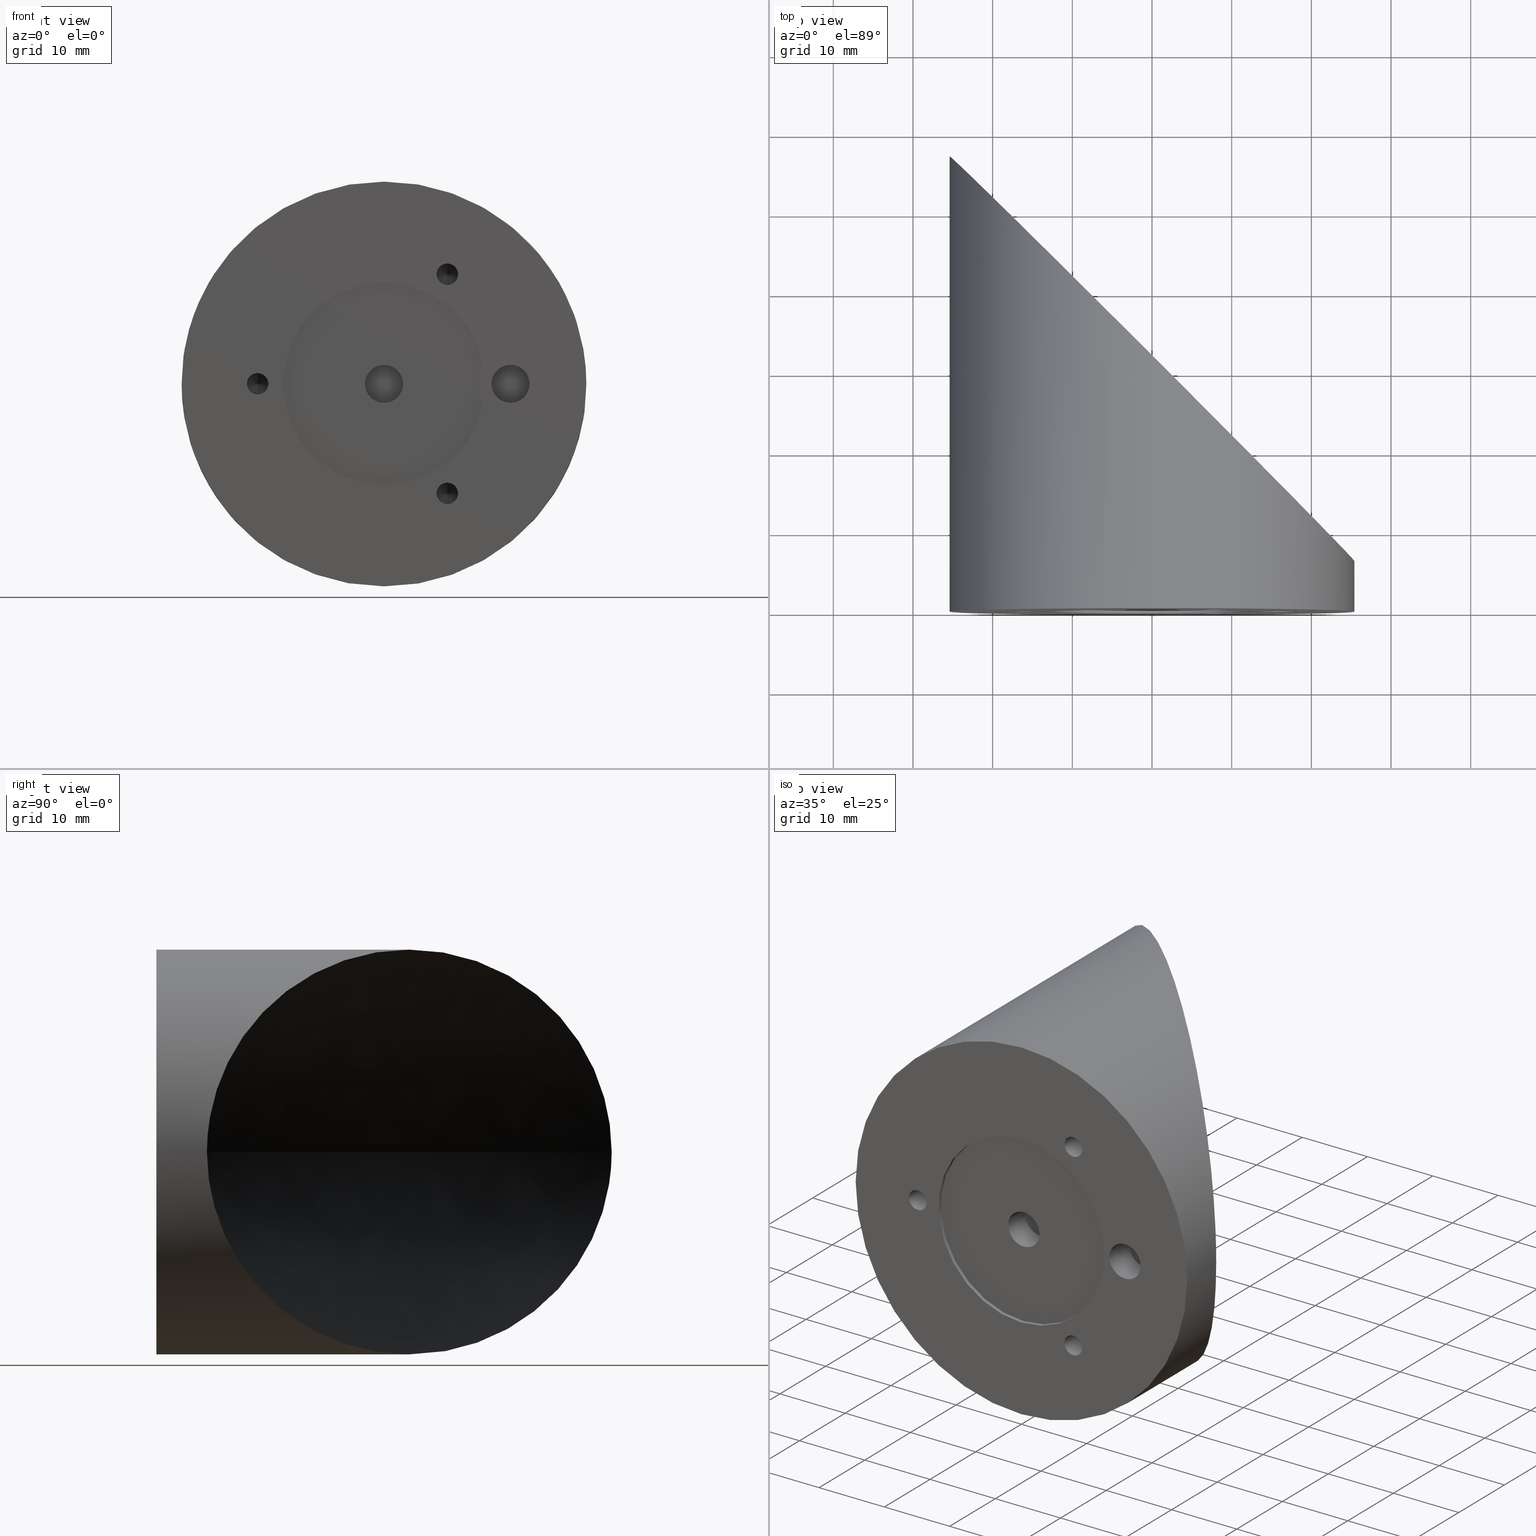
[diagram: canonical four-view strip — front | top / right | iso, engineering-drawing reading convention]
A machine part, canonical four-view strip (front | top / right | iso — engineering-drawing reading convention). The complete STEP part file that produces these views, byte-faithful:
ISO-10303-21;
HEADER;
FILE_DESCRIPTION (( 'STEP AP203' ),
    '1' );
FILE_NAME ('�50_36596.step',
    '2019-04-24T21:00:02',
    ( '' ),
    ( '' ),
    'SwSTEP 2.0',
    'SolidWorks 2018',
    '' );
FILE_SCHEMA (( 'CONFIG_CONTROL_DESIGN' ));
ENDSEC;

DATA;
#1 = CARTESIAN_POINT ( 'NONE',  ( 7.937499999999965361, 5.700000000000000178, -12.39560328507798737 ) ) ;
#2 = AXIS2_PLACEMENT_3D ( 'NONE', #530, #66, #539 ) ;
#3 = DIRECTION ( 'NONE',  ( -0.0000000000000000000, -1.000000000000000000, -0.0000000000000000000 ) ) ;
#4 = ORIENTED_EDGE ( 'NONE', *, *, #450, .T. ) ;
#5 = DIRECTION ( 'NONE',  ( -0.0000000000000000000, -1.000000000000000000, -0.0000000000000000000 ) ) ;
#6 = CARTESIAN_POINT ( 'NONE',  ( -5.677701038054460803, 37.42770103818921257, -24.79850263838227420 ) ) ;
#7 = CARTESIAN_POINT ( 'NONE',  ( 15.87500000000000000, 4.320000000000000284, 0.0000000000000000000 ) ) ;
#8 = MECHANICAL_CONTEXT ( 'NONE', #839, 'mechanical' ) ;
#9 = B_SPLINE_CURVE_WITH_KNOTS ( 'NONE', 3,
 ( #354, #220, #367, #719, #223, #716, #96, #440, #579, #582, #493, #296, #651, #165, #859, #99, #105, #497, #161, #573, #168, #292, #29, #570, #435, #229, #442, #158, #37, #505, #854, #42 ),
 .UNSPECIFIED., .F., .F.,
 ( 4, 2, 2, 2, 2, 2, 2, 2, 2, 2, 2, 2, 2, 2, 2, 4 ),
 ( 0.04810272725894961660, 0.04960341340592316906, 0.05110409955289672151, 0.05410547184684383337, 0.05560615799381738583, 0.05710684414079093829, 0.06010821643473805015, 0.06160890258171160261, 0.06310958872868516201, 0.06611096102263225305, 0.07211370561052643513, 0.07811645019842061721, 0.08411919478631479929, 0.08712056708026189034, 0.09012193937420898138, 0.09612468396210317734 ),
 .UNSPECIFIED. ) ;
#10 = CARTESIAN_POINT ( 'NONE',  ( 3.110602869834276865E-15, 90.23632920900077181, 25.39999999999999858 ) ) ;
#11 = ORIENTED_EDGE ( 'NONE', *, *, #32, .F. ) ;
#12 = CARTESIAN_POINT ( 'NONE',  ( 0.0000000000000000000, 0.0000000000000000000, 0.0000000000000000000 ) ) ;
#13 = ADVANCED_FACE ( 'NONE', ( #313, #826 ), #572, .T. ) ;
#14 = CARTESIAN_POINT ( 'NONE',  ( -25.33990702312139831, 57.08990702325903044, -2.014298265727131998 ) ) ;
#15 = EDGE_CURVE ( 'NONE', #574, #460, #702, .T. ) ;
#16 = EDGE_LOOP ( 'NONE', ( #685, #338, #495, #294 ) ) ;
#17 = PERSON_AND_ORGANIZATION_ROLE ( 'creator' ) ;
#18 = LINE ( 'NONE', #782, #226 ) ;
#19 = CARTESIAN_POINT ( 'NONE',  ( -17.58012703624189754, 49.33012703637960072, -18.35191151905085860 ) ) ;
#20 = EDGE_CURVE ( 'NONE', #62, #403, #58, .T. ) ;
#21 = CARTESIAN_POINT ( 'NONE',  ( -22.92713338263313361, 54.67713338277160773, -10.94182197601608664 ) ) ;
#22 = AXIS2_PLACEMENT_3D ( 'NONE', #538, #414, #766 ) ;
#23 = CARTESIAN_POINT ( 'NONE',  ( -15.87500000000000000, 5.700000000000000178, 0.0000000000000000000 ) ) ;
#24 = ORIENTED_EDGE ( 'NONE', *, *, #835, .F. ) ;
#25 = AXIS2_PLACEMENT_3D ( 'NONE', #725, #667, #297 ) ;
#26 = DATE_AND_TIME ( #197, #762 ) ;
#27 = CC_DESIGN_PERSON_AND_ORGANIZATION_ASSIGNMENT ( #152, #336, ( #796 ) ) ;
#28 = CIRCLE ( 'NONE', #123, 1.352549999999999253 ) ;
#29 = CARTESIAN_POINT ( 'NONE',  ( -13.85126286655956562, 45.60126286669613904, 21.34471803107064858 ) ) ;
#30 = VERTEX_POINT ( 'NONE', #718 ) ;
#31 = DIRECTION ( 'NONE',  ( -0.0000000000000000000, -1.000000000000000000, -0.0000000000000000000 ) ) ;
#32 = EDGE_CURVE ( 'NONE', #849, #148, #316, .T. ) ;
#33 = AXIS2_PLACEMENT_3D ( 'NONE', #267, #72, #415 ) ;
#34 = CARTESIAN_POINT ( 'NONE',  ( 7.937499999999965361, 5.700000000000000178, -13.74815328507798640 ) ) ;
#35 = ORIENTED_EDGE ( 'NONE', *, *, #894, .T. ) ;
#36 = ORIENTED_EDGE ( 'NONE', *, *, #20, .F. ) ;
#37 = CARTESIAN_POINT ( 'NONE',  ( -4.965716845980086447, 36.71571684611458153, 24.92019169298241721 ) ) ;
#38 = CIRCLE ( 'NONE', #536, 12.69999999999999929 ) ;
#39 = CARTESIAN_POINT ( 'NONE',  ( 20.88705431034938798, 10.86294568977931618, -14.45970665876703443 ) ) ;
#40 = CIRCLE ( 'NONE', #883, 2.387499999999999734 ) ;
#41 = EDGE_LOOP ( 'NONE', ( #353, #160, #106 ) ) ;
#42 = CARTESIAN_POINT ( 'NONE',  ( -3.679782173415781046E-12, 31.75000000013650236, 25.39999999999956160 ) ) ;
#43 = DIRECTION ( 'NONE',  ( 0.0000000000000000000, 1.000000000000000000, 0.0000000000000000000 ) ) ;
#44 = CARTESIAN_POINT ( 'NONE',  ( 15.75322996235737527, 15.99677003777224016, 19.94088469936381713 ) ) ;
#45 = EDGE_CURVE ( 'NONE', #529, #218, #180, .T. ) ;
#46 = CARTESIAN_POINT ( 'NONE',  ( 2.867070042870211832, 28.88292995726230927, -25.24789856614434314 ) ) ;
#47 = MANIFOLD_SOLID_BREP ( 'Cut-Extrude1', #713 ) ;
#48 = APPROVAL ( #696, 'UNSPECIFIED' ) ;
#49 = DIRECTION ( 'NONE',  ( 0.0000000000000000000, 1.000000000000000000, 0.0000000000000000000 ) ) ;
#50 = EDGE_CURVE ( 'NONE', #465, #522, #77, .T. ) ;
#51 = EDGE_LOOP ( 'NONE', ( #577, #439 ) ) ;
#52 = FACE_OUTER_BOUND ( 'NONE', #759, .T. ) ;
#53 = COORDINATED_UNIVERSAL_TIME_OFFSET ( 5, 0, .BEHIND. ) ;
#54 = CARTESIAN_POINT ( 'NONE',  ( 3.574495887741338418, 28.17550411239097485, 25.15748655172640724 ) ) ;
#55 = LINE ( 'NONE', #411, #715 ) ;
#56 = CARTESIAN_POINT ( 'NONE',  ( -2.642881778843148241E-15, 0.0000000000000000000, 0.0000000000000000000 ) ) ;
#57 = AXIS2_PLACEMENT_3D ( 'NONE', #436, #183, #585 ) ;
#58 = LINE ( 'NONE', #434, #646 ) ;
#59 = ADVANCED_FACE ( 'NONE', ( #580 ), #215, .F. ) ;
#60 = DIRECTION ( 'NONE',  ( -0.0000000000000000000, -1.000000000000000000, -0.0000000000000000000 ) ) ;
#61 = DIRECTION ( 'NONE',  ( 0.0000000000000000000, -1.000000000000000000, 0.0000000000000000000 ) ) ;
#62 = VERTEX_POINT ( 'NONE', #858 ) ;
#63 = CIRCLE ( 'NONE', #345, 2.387499999999999289 ) ;
#64 = CARTESIAN_POINT ( 'NONE',  ( 7.937499999999965361, 0.0000000000000000000, -13.74815328507798640 ) ) ;
#65 = CARTESIAN_POINT ( 'NONE',  ( 2.923844232964305409E-16, 4.320000000000000284, 2.387499999999999289 ) ) ;
#66 = DIRECTION ( 'NONE',  ( 0.0000000000000000000, 1.000000000000000000, 0.0000000000000000000 ) ) ;
#67 = DIRECTION ( 'NONE',  ( 0.0000000000000000000, 0.0000000000000000000, -1.000000000000000000 ) ) ;
#68 = CARTESIAN_POINT ( 'NONE',  ( 7.937499999999965361, 5.700000000000000178, 13.74815328507798640 ) ) ;
#69 = DIRECTION ( 'NONE',  ( 0.0000000000000000000, 0.0000000000000000000, -1.000000000000000000 ) ) ;
#70 = ORIENTED_EDGE ( 'NONE', *, *, #369, .F. ) ;
#71 = AXIS2_PLACEMENT_3D ( 'NONE', #668, #444, #745 ) ;
#72 = DIRECTION ( 'NONE',  ( -0.0000000000000000000, -1.000000000000000000, -0.0000000000000000000 ) ) ;
#73 = ORIENTED_EDGE ( 'NONE', *, *, #596, .F. ) ;
#74 = ORIENTED_EDGE ( 'NONE', *, *, #289, .F. ) ;
#75 = LOCAL_TIME ( 17, 0, 2.000000000000000000, #235 ) ;
#76 = CARTESIAN_POINT ( 'NONE',  ( -15.87500000000000000, 6.512694030265726575, 0.0000000000000000000 ) ) ;
#77 = CIRCLE ( 'NONE', #358, 12.69999999999999929 ) ;
#78 = DATE_TIME_ROLE ( 'creation_date' ) ;
#79 = CARTESIAN_POINT ( 'NONE',  ( 7.937499999999965361, 0.0000000000000000000, 13.74815328507798640 ) ) ;
#80 = SECURITY_CLASSIFICATION ( '', '', #474 ) ;
#81 = EDGE_LOOP ( 'NONE', ( #628, #175, #556, #221, #204 ) ) ;
#82 = AXIS2_PLACEMENT_3D ( 'NONE', #559, #557, #636 ) ;
#83 = CARTESIAN_POINT ( 'NONE',  ( -24.17242148413162184, 55.92242148427015280, -7.859274957130898187 ) ) ;
#84 = CIRCLE ( 'NONE', #177, 1.352549999999999253 ) ;
#85 =( NAMED_UNIT ( * ) SI_UNIT ( $, .STERADIAN. ) SOLID_ANGLE_UNIT ( ) );
#86 = VECTOR ( 'NONE', #746, 1000.000000000000000 ) ;
#87 = CARTESIAN_POINT ( 'NONE',  ( -25.40000000000032188, 57.15000000013932890, -1.010557820234587956 ) ) ;
#88 = DIRECTION ( 'NONE',  ( -0.0000000000000000000, -1.000000000000000000, -0.0000000000000000000 ) ) ;
#89 = ORIENTED_EDGE ( 'NONE', *, *, #50, .F. ) ;
#90 = EDGE_CURVE ( 'NONE', #460, #661, #248, .T. ) ;
#91 = ORIENTED_EDGE ( 'NONE', *, *, #492, .T. ) ;
#92 = CC_DESIGN_APPROVAL ( #48, ( #80 ) ) ;
#93 = CARTESIAN_POINT ( 'NONE',  ( -23.12656499384053888, 54.87656499397899523, -10.51405073267908463 ) ) ;
#94 = CYLINDRICAL_SURFACE ( 'NONE', #114, 1.352549999999999253 ) ;
#95 = DIRECTION ( 'NONE',  ( 0.0000000000000000000, 0.0000000000000000000, -1.000000000000000000 ) ) ;
#96 = CARTESIAN_POINT ( 'NONE',  ( -24.91912955028560006, 56.66912955042496947, 5.016703429671586001 ) ) ;
#97 = ORIENTED_EDGE ( 'NONE', *, *, #258, .T. ) ;
#98 = ORIENTED_EDGE ( 'NONE', *, *, #264, .F. ) ;
#99 = CARTESIAN_POINT ( 'NONE',  ( -21.83922973555702995, 53.58922973569545434, 12.97751472815525453 ) ) ;
#100 = APPROVAL_DATE_TIME ( #271, #48 ) ;
#101 = CARTESIAN_POINT ( 'NONE',  ( 21.85500477762742122, 9.894995222501284715, -12.97336527762334768 ) ) ;
#102 = ORIENTED_EDGE ( 'NONE', *, *, #781, .T. ) ;
#103 = AXIS2_PLACEMENT_3D ( 'NONE', #728, #49, #237 ) ;
#104 = CARTESIAN_POINT ( 'NONE',  ( 7.937499999999965361, 0.0000000000000000000, 13.74815328507798640 ) ) ;
#105 = CARTESIAN_POINT ( 'NONE',  ( -21.60348923600461291, 53.35348923614303374, 13.36597650318335084 ) ) ;
#106 = ORIENTED_EDGE ( 'NONE', *, *, #506, .T. ) ;
#107 = CARTESIAN_POINT ( 'NONE',  ( 23.67062844458222770, 8.079371555545424854, 9.224653027086247903 ) ) ;
#108 = CARTESIAN_POINT ( 'NONE',  ( 7.107514868007380748, 24.64248513212402614, -24.42891655262618755 ) ) ;
#109 = AXIS2_PLACEMENT_3D ( 'NONE', #273, #88, #349 ) ;
#110 = PERSON_AND_ORGANIZATION ( #672, #430 ) ;
#111 = CARTESIAN_POINT ( 'NONE',  ( -21.38687317528383147, 57.53145720013552733, -32.87462744436670192 ) ) ;
#112 = CARTESIAN_POINT ( 'NONE',  ( 23.49425201712657341, 8.255747983001402446, -9.664520403935878079 ) ) ;
#113 = CARTESIAN_POINT ( 'NONE',  ( -25.70479999999708198, 57.53145720013551312, -11.11543243757011368 ) ) ;
#114 = AXIS2_PLACEMENT_3D ( 'NONE', #104, #228, #861 ) ;
#115 = CARTESIAN_POINT ( 'NONE',  ( 15.87500000000000000, 4.319999999999995843, 0.0000000000000000000 ) ) ;
#116 = CC_DESIGN_PERSON_AND_ORGANIZATION_ASSIGNMENT ( #217, #624, ( #80 ) ) ;
#117 = CARTESIAN_POINT ( 'NONE',  ( 17.59307431041942138, 14.15692568970981036, 18.39065751051364117 ) ) ;
#118 = CARTESIAN_POINT ( 'NONE',  ( -15.87500000000000000, 5.700000000000000178, 0.0000000000000000000 ) ) ;
#119 = ORIENTED_EDGE ( 'NONE', *, *, #264, .T. ) ;
#120 = CARTESIAN_POINT ( 'NONE',  ( 15.12322275978768715, 16.62677724034237770, 20.42218853992491745 ) ) ;
#121 = CIRCLE ( 'NONE', #664, 1.352549999999999253 ) ;
#122 = CARTESIAN_POINT ( 'NONE',  ( 7.937499999999965361, 5.700000000000000178, 13.74815328507798640 ) ) ;
#123 = AXIS2_PLACEMENT_3D ( 'NONE', #723, #788, #856 ) ;
#124 = VERTEX_POINT ( 'NONE', #280 ) ;
#125 = ADVANCED_BREP_SHAPE_REPRESENTATION ( '+50_36596', ( #47, #709 ), #528 ) ;
#126 = DIRECTION ( 'NONE',  ( 0.0000000000000000000, 0.0000000000000000000, -1.000000000000000000 ) ) ;
#127 = DIRECTION ( 'NONE',  ( 0.0000000000000000000, 1.000000000000000000, 0.0000000000000000000 ) ) ;
#128 = CARTESIAN_POINT ( 'NONE',  ( 7.937499999999965361, -4.588139233005562251E-17, 13.74815328507798640 ) ) ;
#129 = CARTESIAN_POINT ( 'NONE',  ( 3.110602869834276865E-15, 0.0000000000000000000, 25.39999999999999858 ) ) ;
#130 = ORIENTED_EDGE ( 'NONE', *, *, #857, .F. ) ;
#131 = PLANE ( 'NONE',  #2 ) ;
#132 = VERTEX_POINT ( 'NONE', #792 ) ;
#133 = DIRECTION ( 'NONE',  ( -0.0000000000000000000, -1.000000000000000000, -0.0000000000000000000 ) ) ;
#134 = CARTESIAN_POINT ( 'NONE',  ( 7.937499999999965361, 5.700000000000000178, 13.74815328507798640 ) ) ;
#135 = LINE ( 'NONE', #616, #787 ) ;
#136 = DIRECTION ( 'NONE',  ( 0.0000000000000000000, 0.0000000000000000000, -1.000000000000000000 ) ) ;
#137 = VECTOR ( 'NONE', #877, 1000.000000000000000 ) ;
#138 = B_SPLINE_CURVE_WITH_KNOTS ( 'NONE', 2,
 ( #776, #563, #844 ),
 .UNSPECIFIED., .F., .F.,
 ( 3, 3 ),
 ( 0.4955453675796981927, 0.4973272205478184715 ),
 .UNSPECIFIED. ) ;
#139 = DIRECTION ( 'NONE',  ( -0.0000000000000000000, -1.000000000000000000, -0.0000000000000000000 ) ) ;
#140 = AXIS2_PLACEMENT_3D ( 'NONE', #334, #61, #136 ) ;
#141 = CARTESIAN_POINT ( 'NONE',  ( -9.826554362969488920, 41.57655436310376729, -23.43414937196584091 ) ) ;
#142 = ORIENTED_EDGE ( 'NONE', *, *, #293, .T. ) ;
#143 = DIRECTION ( 'NONE',  ( -0.0000000000000000000, -1.000000000000000000, -0.0000000000000000000 ) ) ;
#144 = FACE_BOUND ( 'NONE', #569, .T. ) ;
#145 = FACE_OUTER_BOUND ( 'NONE', #243, .T. ) ;
#146 =( NAMED_UNIT ( * ) PLANE_ANGLE_UNIT ( ) SI_UNIT ( $, .RADIAN. ) );
#147 = ORIENTED_EDGE ( 'NONE', *, *, #815, .F. ) ;
#148 = VERTEX_POINT ( 'NONE', #801 ) ;
#149 = CC_DESIGN_PERSON_AND_ORGANIZATION_ASSIGNMENT ( #110, #761, ( #517 ) ) ;
#150 = CARTESIAN_POINT ( 'NONE',  ( -25.16133615855240535, 56.91133615869000550, -3.509876647022597940 ) ) ;
#151 = EDGE_CURVE ( 'NONE', #402, #30, #394, .T. ) ;
#152 = PERSON_AND_ORGANIZATION ( #672, #430 ) ;
#153 = DIRECTION ( 'NONE',  ( 0.0000000000000000000, -1.000000000000000000, 0.0000000000000000000 ) ) ;
#154 = AXIS2_PLACEMENT_3D ( 'NONE', #649, #43, #309 ) ;
#155 = AXIS2_PLACEMENT_3D ( 'NONE', #461, #253, #609 ) ;
#156 = VERTEX_POINT ( 'NONE', #371 ) ;
#157 = ORIENTED_EDGE ( 'NONE', *, *, #698, .F. ) ;
#158 = CARTESIAN_POINT ( 'NONE',  ( -5.671297475159705392, 37.42129747529374839, 24.76944659085237888 ) ) ;
#159 = LINE ( 'NONE', #188, #186 ) ;
#160 = ORIENTED_EDGE ( 'NONE', *, *, #741, .T. ) ;
#161 = CARTESIAN_POINT ( 'NONE',  ( -20.36696140388770004, 52.11696140402510480, 15.20119821662446391 ) ) ;
#162 = AXIS2_PLACEMENT_3D ( 'NONE', #659, #31, #791 ) ;
#163 = DIRECTION ( 'NONE',  ( -0.0000000000000000000, -1.000000000000000000, -0.0000000000000000000 ) ) ;
#164 = CARTESIAN_POINT ( 'NONE',  ( 18.76394866295361297, 12.98605133717579996, -17.20628069572504160 ) ) ;
#165 = CARTESIAN_POINT ( 'NONE',  ( -22.50743737487555407, 54.25743737504247832, 11.78087464265349027 ) ) ;
#166 = EDGE_LOOP ( 'NONE', ( #484, #216, #142 ) ) ;
#167 = CIRCLE ( 'NONE', #140, 12.69999999999999929 ) ;
#168 = CARTESIAN_POINT ( 'NONE',  ( -17.60734394690912197, 49.35734394704684291, 18.37816237363568206 ) ) ;
#169 = CARTESIAN_POINT ( 'NONE',  ( 15.14683054439614551, 16.60316945573448422, -20.40453238910384215 ) ) ;
#170 = LOCAL_TIME ( 17, 0, 2.000000000000000000, #535 ) ;
#171 = CARTESIAN_POINT ( 'NONE',  ( 13.17241457465186194, 18.57758542547887259, 21.72089280077187823 ) ) ;
#172 = AXIS2_PLACEMENT_3D ( 'NONE', #501, #153, #643 ) ;
#173 = CARTESIAN_POINT ( 'NONE',  ( 15.87500000000000000, 0.0000000000000000000, 0.0000000000000000000 ) ) ;
#174 = ADVANCED_FACE ( 'NONE', ( #607 ), #263, .F. ) ;
#175 = ORIENTED_EDGE ( 'NONE', *, *, #707, .F. ) ;
#176 = DIRECTION ( 'NONE',  ( 0.0000000000000000000, 0.0000000000000000000, -1.000000000000000000 ) ) ;
#177 = AXIS2_PLACEMENT_3D ( 'NONE', #717, #163, #95 ) ;
#178 = PERSON_AND_ORGANIZATION ( #672, #430 ) ;
#179 = CIRCLE ( 'NONE', #57, 2.387499999999999289 ) ;
#180 = CIRCLE ( 'NONE', #103, 25.39999999999999858 ) ;
#181 = CARTESIAN_POINT ( 'NONE',  ( -3.679782173415781046E-12, 31.75000000013650236, 25.39999999999956160 ) ) ;
#182 = DIRECTION ( 'NONE',  ( 0.0000000000000000000, 0.0000000000000000000, -1.000000000000000000 ) ) ;
#183 = DIRECTION ( 'NONE',  ( -0.0000000000000000000, -1.000000000000000000, -0.0000000000000000000 ) ) ;
#184 = VERTEX_POINT ( 'NONE', #660 ) ;
#185 = CARTESIAN_POINT ( 'NONE',  ( 2.966278871152168357E-13, 25.32334280013104433, 8.938447513201134953 ) ) ;
#186 = VECTOR ( 'NONE', #758, 1000.000000000000000 ) ;
#187 = DIRECTION ( 'NONE',  ( -0.0000000000000000000, -1.000000000000000000, -0.0000000000000000000 ) ) ;
#188 = CARTESIAN_POINT ( 'NONE',  ( 15.87500000000000000, 0.0000000000000000000, 2.387500000000000622 ) ) ;
#189 = ADVANCED_FACE ( 'NONE', ( #145 ), #94, .F. ) ;
#190 = DIRECTION ( 'NONE',  ( -0.0000000000000000000, -1.000000000000000000, -0.0000000000000000000 ) ) ;
#191 = CARTESIAN_POINT ( 'NONE',  ( 28.31782351588477908, 6.121857200128061116, 19.74345442902858849 ) ) ;
#192 = DIRECTION ( 'NONE',  ( 0.0000000000000000000, 0.0000000000000000000, -1.000000000000000000 ) ) ;
#193 = CARTESIAN_POINT ( 'NONE',  ( 15.87500000000000000, 7.654042494671999858E-19, -2.387500000000000622 ) ) ;
#194 = ORIENTED_EDGE ( 'NONE', *, *, #404, .F. ) ;
#195 = ORIENTED_EDGE ( 'NONE', *, *, #422, .T. ) ;
#196 = CARTESIAN_POINT ( 'NONE',  ( -1.087580343926009808E-15, 0.0000000000000000000, 12.69999999999999929 ) ) ;
#197 = CALENDAR_DATE ( 2019, 24, 4 ) ;
#198 = AXIS2_PLACEMENT_3D ( 'NONE', #382, #882, #892 ) ;
#199 = DATE_TIME_ROLE ( 'classification_date' ) ;
#200 = CIRCLE ( 'NONE', #429, 12.69999999999999929 ) ;
#201 = ADVANCED_FACE ( 'NONE', ( #852 ), #593, .F. ) ;
#202 = CARTESIAN_POINT ( 'NONE',  ( 0.0000000000000000000, 0.5080000000000000071, 0.0000000000000000000 ) ) ;
#203 = AXIS2_PLACEMENT_3D ( 'NONE', #692, #747, #805 ) ;
#204 = ORIENTED_EDGE ( 'NONE', *, *, #45, .T. ) ;
#205 = B_SPLINE_CURVE_WITH_KNOTS ( 'NONE', 3,
 ( #181, #520, #594, #513, #54, #523, #370, #871, #454, #675, #171, #516, #301, #120, #44, #117, #793, #374, #314, #449, #671, #511, #864, #308, #589, #869, #107, #881, #241, #804, #666, #232, #385, #600 ),
 .UNSPECIFIED., .F., .F.,
 ( 4, 2, 2, 2, 2, 2, 2, 2, 2, 2, 2, 2, 2, 2, 2, 2, 4 ),
 ( 0.09612468396210317734, 0.09912765318118503532, 0.1021306224002669072, 0.1081365608384306232, 0.1141424992765943391, 0.1156439838861352820, 0.1171454684956762110, 0.1201484377147580551, 0.1261543761529217711, 0.1276558607624626862, 0.1291573453720036013, 0.1321603145910854593, 0.1336617992006263744, 0.1351632838101672895, 0.1381662530292491475, 0.1411692222483309778, 0.1441721914674128358 ),
 .UNSPECIFIED. ) ;
#206 = CARTESIAN_POINT ( 'NONE',  ( -9.140824242701349078, 40.89082424283716222, -23.70949247268009330 ) ) ;
#207 = VERTEX_POINT ( 'NONE', #806 ) ;
#208 = APPROVAL_ROLE ( '' ) ;
#209 = CYLINDRICAL_SURFACE ( 'NONE', #22, 1.352549999999999253 ) ;
#210 = ORIENTED_EDGE ( 'NONE', *, *, #526, .F. ) ;
#211 = DIRECTION ( 'NONE',  ( 0.0000000000000000000, 0.0000000000000000000, -1.000000000000000000 ) ) ;
#212 = CARTESIAN_POINT ( 'NONE',  ( -16.98200230264589194, 48.73200230278249023, -18.90536610217911218 ) ) ;
#213 = DIRECTION ( 'NONE',  ( -0.0000000000000000000, -1.000000000000000000, -0.0000000000000000000 ) ) ;
#214 = CARTESIAN_POINT ( 'NONE',  ( -21.88578385787922542, 53.63578385801744730, -13.02471027405013082 ) ) ;
#215 = PLANE ( 'NONE',  #154 ) ;
#216 = ORIENTED_EDGE ( 'NONE', *, *, #560, .T. ) ;
#217 = PERSON_AND_ORGANIZATION ( #672, #430 ) ;
#218 = VERTEX_POINT ( 'NONE', #129 ) ;
#219 = DIRECTION ( 'NONE',  ( -0.0000000000000000000, -1.000000000000000000, -0.0000000000000000000 ) ) ;
#220 = CARTESIAN_POINT ( 'NONE',  ( -25.40000000000053859, 57.15000000013955628, 0.5044304829905095211 ) ) ;
#221 = ORIENTED_EDGE ( 'NONE', *, *, #227, .T. ) ;
#222 = ORIENTED_EDGE ( 'NONE', *, *, #744, .T. ) ;
#223 = CARTESIAN_POINT ( 'NONE',  ( -25.27816902003166533, 57.02816902017107736, 2.535475448995170744 ) ) ;
#224 = DIRECTION ( 'NONE',  ( 0.0000000000000000000, 0.0000000000000000000, -1.000000000000000000 ) ) ;
#225 = FACE_BOUND ( 'NONE', #663, .T. ) ;
#226 = VECTOR ( 'NONE', #361, 1000.000000000000000 ) ;
#227 = EDGE_CURVE ( 'NONE', #30, #529, #283, .T. ) ;
#228 = DIRECTION ( 'NONE',  ( -0.0000000000000000000, -1.000000000000000000, -0.0000000000000000000 ) ) ;
#229 = CARTESIAN_POINT ( 'NONE',  ( -7.783134573734113104, 39.53313457386905583, 24.18932817132085233 ) ) ;
#230 = CARTESIAN_POINT ( 'NONE',  ( 20.11151564916537637, 11.63848435096375766, -15.52009358360201574 ) ) ;
#231 = EDGE_LOOP ( 'NONE', ( #853, #73 ) ) ;
#232 = CARTESIAN_POINT ( 'NONE',  ( 25.34003501377293333, 6.409964986354879990, 2.019679683124773639 ) ) ;
#233 = CARTESIAN_POINT ( 'NONE',  ( 24.80328668270988501, 6.946713317420750045, -5.495410143724362761 ) ) ;
#234 = ORIENTED_EDGE ( 'NONE', *, *, #404, .T. ) ;
#235 = COORDINATED_UNIVERSAL_TIME_OFFSET ( 5, 0, .BEHIND. ) ;
#236 = FACE_OUTER_BOUND ( 'NONE', #784, .T. ) ;
#237 = DIRECTION ( 'NONE',  ( 0.0000000000000000000, 0.0000000000000000000, 1.000000000000000000 ) ) ;
#238 = VECTOR ( 'NONE', #213, 1000.000000000000000 ) ;
#239 = CARTESIAN_POINT ( 'NONE',  ( 1.155248847781267241, 25.32334280013104433, -17.66656701742097013 ) ) ;
#240 = CARTESIAN_POINT ( 'NONE',  ( -2.642881778843148241E-15, 0.5080000000000000071, 0.0000000000000000000 ) ) ;
#241 = CARTESIAN_POINT ( 'NONE',  ( 24.45451196593779741, 7.295488034191129678, 6.935761289249204431 ) ) ;
#242 = DIRECTION ( 'NONE',  ( -0.0000000000000000000, -1.000000000000000000, -0.0000000000000000000 ) ) ;
#243 = EDGE_LOOP ( 'NONE', ( #504, #860, #565, #705 ) ) ;
#244 = DIRECTION ( 'NONE',  ( 1.049727191138618079E-16, -0.5150380749100549327, 0.8571673007021118895 ) ) ;
#245 = CARTESIAN_POINT ( 'NONE',  ( -2.642881778843148241E-15, 0.0000000000000000000, 0.0000000000000000000 ) ) ;
#246 = VECTOR ( 'NONE', #413, 1000.000000000000000 ) ;
#247 = LINE ( 'NONE', #597, #489 ) ;
#248 = CIRCLE ( 'NONE', #25, 2.387499999999999734 ) ;
#249 = EDGE_LOOP ( 'NONE', ( #288, #499 ) ) ;
#250 = DIRECTION ( 'NONE',  ( 0.0000000000000000000, -0.5150380749100549327, -0.8571673007021118895 ) ) ;
#251 = CARTESIAN_POINT ( 'NONE',  ( -24.23532341040234428, 57.53145720013551312, 22.30292983662063477 ) ) ;
#252 = DIRECTION ( 'NONE',  ( 0.0000000000000000000, 0.0000000000000000000, -1.000000000000000000 ) ) ;
#253 = DIRECTION ( 'NONE',  ( -0.0000000000000000000, -1.000000000000000000, -0.0000000000000000000 ) ) ;
#254 = ADVANCED_FACE ( 'NONE', ( #789 ), #380, .F. ) ;
#255 = DIRECTION ( 'NONE',  ( 0.0000000000000000000, 0.0000000000000000000, -1.000000000000000000 ) ) ;
#256 = ORIENTED_EDGE ( 'NONE', *, *, #829, .F. ) ;
#257 = VERTEX_POINT ( 'NONE', #518 ) ;
#258 = EDGE_CURVE ( 'NONE', #777, #257, #482, .T. ) ;
#259 = ORIENTED_EDGE ( 'NONE', *, *, #469, .T. ) ;
#260 = CARTESIAN_POINT ( 'NONE',  ( 7.937499999999965361, 5.700000000000000178, -13.74815328507798640 ) ) ;
#261 = CC_DESIGN_SECURITY_CLASSIFICATION ( #80, ( #796 ) ) ;
#262 = CARTESIAN_POINT ( 'NONE',  ( 5.624840870854797004E-13, 25.32334280013105143, -3.021888295151597958E-12 ) ) ;
#263 = CYLINDRICAL_SURFACE ( 'NONE', #584, 2.387500000000000622 ) ;
#264 = EDGE_CURVE ( 'NONE', #156, #477, #359, .T. ) ;
#265 = ADVANCED_FACE ( 'NONE', ( #621 ), #655, .F. ) ;
#266 = AXIS2_PLACEMENT_3D ( 'NONE', #386, #703, #625 ) ;
#267 = CARTESIAN_POINT ( 'NONE',  ( 15.87500000000000000, 7.654042494671999858E-19, 0.0000000000000000000 ) ) ;
#268 = ORIENTED_EDGE ( 'NONE', *, *, #700, .F. ) ;
#269 = ORIENTED_EDGE ( 'NONE', *, *, #809, .T. ) ;
#270 = CYLINDRICAL_SURFACE ( 'NONE', #491, 1.352549999999999253 ) ;
#271 = DATE_AND_TIME ( #498, #170 ) ;
#272 = CARTESIAN_POINT ( 'NONE',  ( -18.45338721870927756, 50.20338721884717614, -17.45869069861009137 ) ) ;
#273 = CARTESIAN_POINT ( 'NONE',  ( -15.87500000000000000, 5.700000000000000178, 0.0000000000000000000 ) ) ;
#274 = AXIS2_PLACEMENT_3D ( 'NONE', #318, #814, #472 ) ;
#275 = CARTESIAN_POINT ( 'NONE',  ( -11.18977277295161166, 42.93977277308617602, -22.81467757224968551 ) ) ;
#276 = ORIENTED_EDGE ( 'NONE', *, *, #310, .T. ) ;
#277 = ORIENTED_EDGE ( 'NONE', *, *, #325, .F. ) ;
#278 = CARTESIAN_POINT ( 'NONE',  ( -23.50161380681167955, 55.25161380695020341, -9.646627374329264981 ) ) ;
#279 = CALENDAR_DATE ( 2019, 24, 4 ) ;
#280 = CARTESIAN_POINT ( 'NONE',  ( -15.87500000000000000, 5.700000000000000178, -1.352549999999999253 ) ) ;
#281 = LINE ( 'NONE', #384, #688 ) ;
#282 = COORDINATED_UNIVERSAL_TIME_OFFSET ( 5, 0, .BEHIND. ) ;
#283 = LINE ( 'NONE', #739, #86 ) ;
#284 = DIRECTION ( 'NONE',  ( -0.0000000000000000000, -1.000000000000000000, -0.0000000000000000000 ) ) ;
#285 = EDGE_LOOP ( 'NONE', ( #544, #674 ) ) ;
#286 = CC_DESIGN_APPROVAL ( #452, ( #813 ) ) ;
#287 = DIRECTION ( 'NONE',  ( 0.0000000000000000000, 0.0000000000000000000, -1.000000000000000000 ) ) ;
#288 = ORIENTED_EDGE ( 'NONE', *, *, #387, .T. ) ;
#289 = EDGE_CURVE ( 'NONE', #522, #465, #200, .T. ) ;
#290 = CYLINDRICAL_SURFACE ( 'NONE', #821, 12.69999999999999929 ) ;
#291 = CIRCLE ( 'NONE', #203, 1.352549999999999253 ) ;
#292 = CARTESIAN_POINT ( 'NONE',  ( -15.13432881798669172, 46.88432881812384778, 20.46283226548887413 ) ) ;
#293 = EDGE_CURVE ( 'NONE', #124, #849, #740, .T. ) ;
#294 = ORIENTED_EDGE ( 'NONE', *, *, #773, .F. ) ;
#295 = DIRECTION ( 'NONE',  ( -0.0000000000000000000, -1.000000000000000000, -0.0000000000000000000 ) ) ;
#296 = CARTESIAN_POINT ( 'NONE',  ( -23.50350774278652111, 55.25350774292535760, 9.678279500984862338 ) ) ;
#297 = DIRECTION ( 'NONE',  ( 0.0000000000000000000, 0.0000000000000000000, -1.000000000000000000 ) ) ;
#298 = VERTEX_POINT ( 'NONE', #527 ) ;
#299 = ADVANCED_FACE ( 'NONE', ( #397 ), #812, .F. ) ;
#300 = ORIENTED_EDGE ( 'NONE', *, *, #846, .T. ) ;
#301 = CARTESIAN_POINT ( 'NONE',  ( 14.15460011605796176, 17.59539988407230737, 21.09411549236201111 ) ) ;
#302 = CARTESIAN_POINT ( 'NONE',  ( 21.13504976809075231, 10.61495023203810817, -14.09492928022434555 ) ) ;
#303 = FACE_OUTER_BOUND ( 'NONE', #487, .T. ) ;
#304 = CIRCLE ( 'NONE', #478, 1.352549999999999253 ) ;
#305 = CARTESIAN_POINT ( 'NONE',  ( 1.436351038108796274E-12, 25.32334280013105143, 0.0000000000000000000 ) ) ;
#306 = CARTESIAN_POINT ( 'NONE',  ( 11.21135902792945593, 20.53864097220131768, -22.84290149297242678 ) ) ;
#307 = PRODUCT_RELATED_PRODUCT_CATEGORY ( 'detail', '', ( #517 ) ) ;
#308 = CARTESIAN_POINT ( 'NONE',  ( 22.91856478369641081, 8.831435216432451440, 10.95957008674894340 ) ) ;
#309 = DIRECTION ( 'NONE',  ( 0.0000000000000000000, -0.0000000000000000000, 1.000000000000000000 ) ) ;
#310 = EDGE_CURVE ( 'NONE', #312, #699, #462, .T. ) ;
#311 = CARTESIAN_POINT ( 'NONE',  ( 25.70479999999995968, 6.121857200128061116, -6.626678396540358840 ) ) ;
#312 = VERTEX_POINT ( 'NONE', #595 ) ;
#313 = FACE_OUTER_BOUND ( 'NONE', #629, .T. ) ;
#314 = CARTESIAN_POINT ( 'NONE',  ( 20.36646652801895030, 11.38353347211029742, 15.18420568538931725 ) ) ;
#315 = CYLINDRICAL_SURFACE ( 'NONE', #344, 25.39999999999999858 ) ;
#316 = LINE ( 'NONE', #562, #238 ) ;
#317 = ORIENTED_EDGE ( 'NONE', *, *, #387, .F. ) ;
#318 = CARTESIAN_POINT ( 'NONE',  ( 15.87500000000000000, 7.654042494671999858E-19, 0.0000000000000000000 ) ) ;
#319 = DIRECTION ( 'NONE',  ( 0.0000000000000000000, 1.000000000000000000, 0.0000000000000000000 ) ) ;
#320 = CARTESIAN_POINT ( 'NONE',  ( 3.498023448307980399, 25.32334280013105143, 26.43032721422789066 ) ) ;
#321 = DIRECTION ( 'NONE',  ( -0.0000000000000000000, -1.000000000000000000, -0.0000000000000000000 ) ) ;
#322 = CARTESIAN_POINT ( 'NONE',  ( 15.87500000000000000, 0.0000000000000000000, -2.387500000000000622 ) ) ;
#323 = CARTESIAN_POINT ( 'NONE',  ( -2.642881778843148241E-15, 0.5080000000000000071, -12.69999999999999929 ) ) ;
#324 = VERTEX_POINT ( 'NONE', #754 ) ;
#325 = EDGE_CURVE ( 'NONE', #849, #124, #433, .T. ) ;
#326 = DIRECTION ( 'NONE',  ( -0.0000000000000000000, -1.000000000000000000, -0.0000000000000000000 ) ) ;
#327 = EDGE_LOOP ( 'NONE', ( #798, #736 ) ) ;
#328 = ADVANCED_FACE ( 'NONE', ( #765 ), #558, .F. ) ;
#329 = CARTESIAN_POINT ( 'NONE',  ( 7.937499999999965361, 5.700000000000000178, -15.10070328507798543 ) ) ;
#330 = FACE_OUTER_BOUND ( 'NONE', #841, .T. ) ;
#331 = CARTESIAN_POINT ( 'NONE',  ( 7.937499999999965361, -4.588139233005562251E-17, 13.74815328507798640 ) ) ;
#332 = APPROVAL_PERSON_ORGANIZATION ( #468, #452, #417 ) ;
#333 = CARTESIAN_POINT ( 'NONE',  ( -2.642881778843148241E-15, 0.5080000000000000071, 0.0000000000000000000 ) ) ;
#334 = CARTESIAN_POINT ( 'NONE',  ( -2.642881778843148241E-15, 0.5080000000000000071, 0.0000000000000000000 ) ) ;
#335 = AXIS2_PLACEMENT_3D ( 'NONE', #134, #3, #471 ) ;
#336 = PERSON_AND_ORGANIZATION_ROLE ( 'design_supplier' ) ;
#337 = DIRECTION ( 'NONE',  ( -0.0000000000000000000, -1.000000000000000000, -0.0000000000000000000 ) ) ;
#338 = ORIENTED_EDGE ( 'NONE', *, *, #829, .T. ) ;
#339 = CARTESIAN_POINT ( 'NONE',  ( -1.437442982173604333, 33.18744298230683398, -25.39999999999999147 ) ) ;
#340 = CONICAL_SURFACE ( 'NONE', #109, 1.352549999999999253, 1.029744258676654312 ) ;
#341 = ORIENTED_EDGE ( 'NONE', *, *, #880, .F. ) ;
#342 =( BOUNDED_SURFACE ( )  B_SPLINE_SURFACE ( 2, 3, ( 
 ( #459, #113, #727, #111 ),
 ( #305, #800, #239, #797 ),
 ( #738, #311, #732, #455 ) ),
 .UNSPECIFIED., .F., .F., .F. ) 
 B_SPLINE_SURFACE_WITH_KNOTS ( ( 3, 3 ),
 ( 4, 4 ),
 ( 0.4955346764618894784, 0.4973379116656275745 ),
 ( 0.0000000000000000000, 1.000000000000000000 ),
 .UNSPECIFIED. ) 
 GEOMETRIC_REPRESENTATION_ITEM ( )  RATIONAL_B_SPLINE_SURFACE ( (
 ( 1.000000000000000000, 0.9943228238251297091, 0.9943228238251297091, 1.000000000000000000),
 ( 1.000000000000000000, 0.9943228238251297091, 0.9943228238251297091, 1.000000000000000000),
 ( 1.000000000000000000, 0.9943228238251297091, 0.9943228238251297091, 1.000000000000000000) ) ) 
 REPRESENTATION_ITEM ( '' )  SURFACE ( )  );
#343 = CARTESIAN_POINT ( 'NONE',  ( -15.87500000000000000, -4.588139233005562251E-17, 0.0000000000000000000 ) ) ;
#344 = AXIS2_PLACEMENT_3D ( 'NONE', #398, #890, #192 ) ;
#345 = AXIS2_PLACEMENT_3D ( 'NONE', #690, #190, #540 ) ;
#346 = CIRCLE ( 'NONE', #33, 2.387500000000000622 ) ;
#347 = PERSON_AND_ORGANIZATION ( #672, #430 ) ;
#348 = ORIENTED_EDGE ( 'NONE', *, *, #575, .T. ) ;
#349 = DIRECTION ( 'NONE',  ( 0.0000000000000000000, 0.0000000000000000000, -1.000000000000000000 ) ) ;
#350 = ORIENTED_EDGE ( 'NONE', *, *, #151, .T. ) ;
#351 = ORIENTED_EDGE ( 'NONE', *, *, #781, .F. ) ;
#352 = EDGE_CURVE ( 'NONE', #132, #156, #419, .T. ) ;
#353 = ORIENTED_EDGE ( 'NONE', *, *, #575, .F. ) ;
#354 = CARTESIAN_POINT ( 'NONE',  ( -25.39999999999913527, 57.15000000013858994, -3.847054410609410425E-12 ) ) ;
#355 = CYLINDRICAL_SURFACE ( 'NONE', #848, 1.352549999999999253 ) ;
#356 = CALENDAR_DATE ( 2019, 24, 4 ) ;
#357 = LINE ( 'NONE', #1, #677 ) ;
#358 = AXIS2_PLACEMENT_3D ( 'NONE', #56, #443, #224 ) ;
#359 = LINE ( 'NONE', #322, #838 ) ;
#360 = CARTESIAN_POINT ( 'NONE',  ( -15.87500000000000000, 5.700000000000000178, 1.352549999999999253 ) ) ;
#361 = DIRECTION ( 'NONE',  ( 1.049727191138618079E-16, -0.5150380749100549327, 0.8571673007021118895 ) ) ;
#362 = CARTESIAN_POINT ( 'NONE',  ( 7.937499999999965361, 0.0000000000000000000, -13.74815328507798640 ) ) ;
#363 = CARTESIAN_POINT ( 'NONE',  ( 2.883977778811441794E-14, 31.75000000013288570, -25.39999999999999147 ) ) ;
#364 = ORIENTED_EDGE ( 'NONE', *, *, #733, .T. ) ;
#365 = VECTOR ( 'NONE', #623, 1000.000000000000000 ) ;
#366 = CIRCLE ( 'NONE', #71, 1.352549999999999253 ) ;
#367 = CARTESIAN_POINT ( 'NONE',  ( -25.38498825607575782, 57.13498825621493182, 1.010564004994066067 ) ) ;
#368 = CARTESIAN_POINT ( 'NONE',  ( 24.90605418778440239, 6.843945812344093937, -5.009901835499978695 ) ) ;
#369 = EDGE_CURVE ( 'NONE', #574, #298, #63, .T. ) ;
#370 = CARTESIAN_POINT ( 'NONE',  ( 7.093618743404350724, 24.65638125672682079, 24.43274036757645362 ) ) ;
#371 = CARTESIAN_POINT ( 'NONE',  ( 15.87500000000000000, 4.320000000000000284, -2.387500000000000622 ) ) ;
#372 = ORIENTED_EDGE ( 'NONE', *, *, #32, .T. ) ;
#373 =( BOUNDED_SURFACE ( )  B_SPLINE_SURFACE ( 2, 3, ( 
 ( #686, #251, #608, #682 ),
 ( #320, #807, #185, #262 ),
 ( #191, #691, #755, #752 ) ),
 .UNSPECIFIED., .F., .F., .F. ) 
 B_SPLINE_SURFACE_WITH_KNOTS ( ( 3, 3 ),
 ( 4, 4 ),
 ( 0.4955346764618894784, 0.4973379116656275745 ),
 ( 0.0000000000000000000, 1.000000000000000000 ),
 .UNSPECIFIED. ) 
 GEOMETRIC_REPRESENTATION_ITEM ( )  RATIONAL_B_SPLINE_SURFACE ( (
 ( 1.000000000000000000, 0.9942368622409268886, 0.9942368622409268886, 1.000000000000000000),
 ( 1.000000000000000000, 0.9942368622409268886, 0.9942368622409268886, 1.000000000000000000),
 ( 1.000000000000000000, 0.9942368622409268886, 0.9942368622409268886, 1.000000000000000000) ) ) 
 REPRESENTATION_ITEM ( '' )  SURFACE ( )  );
#374 = CARTESIAN_POINT ( 'NONE',  ( 20.10158260010981124, 11.64841740001844350, 15.53295033665355973 ) ) ;
#375 = ORIENTED_EDGE ( 'NONE', *, *, #633, .T. ) ;
#376 = CARTESIAN_POINT ( 'NONE',  ( 23.11892783635457960, 8.631072163773485073, -10.53081232288272950 ) ) ;
#377 = DATE_AND_TIME ( #356, #645 ) ;
#378 = FACE_OUTER_BOUND ( 'NONE', #166, .T. ) ;
#379 = FACE_BOUND ( 'NONE', #51, .T. ) ;
#380 = CYLINDRICAL_SURFACE ( 'NONE', #457, 12.69999999999999929 ) ;
#381 = CARTESIAN_POINT ( 'NONE',  ( 7.937499999999965361, 5.700000000000000178, -12.39560328507798737 ) ) ;
#382 = CARTESIAN_POINT ( 'NONE',  ( 0.0000000000000000000, 0.0000000000000000000, 0.0000000000000000000 ) ) ;
#383 = ADVANCED_FACE ( 'NONE', ( #678 ), #676, .T. ) ;
#384 = CARTESIAN_POINT ( 'NONE',  ( 7.937499999999965361, 5.700000000000000178, 12.39560328507798737 ) ) ;
#385 = CARTESIAN_POINT ( 'NONE',  ( 25.39999999999913172, 6.350000000128638078, 1.008915357866120521 ) ) ;
#386 = CARTESIAN_POINT ( 'NONE',  ( 15.87500000000000000, 4.320000000000000284, 0.0000000000000000000 ) ) ;
#387 = EDGE_CURVE ( 'NONE', #661, #460, #40, .T. ) ;
#388 = CARTESIAN_POINT ( 'NONE',  ( -15.87500000000000000, 5.700000000000000178, 1.352549999999999253 ) ) ;
#389 = DIRECTION ( 'NONE',  ( -0.0000000000000000000, -1.000000000000000000, -0.0000000000000000000 ) ) ;
#390 = ORIENTED_EDGE ( 'NONE', *, *, #325, .T. ) ;
#391 = EDGE_LOOP ( 'NONE', ( #351, #259, #552, #640 ) ) ;
#392 = DIRECTION ( 'NONE',  ( 0.0000000000000000000, 0.0000000000000000000, -1.000000000000000000 ) ) ;
#393 = DIRECTION ( 'NONE',  ( 0.0000000000000000000, 0.0000000000000000000, -1.000000000000000000 ) ) ;
#394 = B_SPLINE_CURVE_WITH_KNOTS ( 'NONE', 3,
 ( #866, #590, #669, #734, #515, #368, #233, #507, #441, #662, #112, #376, #872, #731, #101, #302, #39, #502, #230, #164, #583, #576, #169, #446, #658, #306, #794, #108, #721, #790, #46, #512, #586, #363 ),
 .UNSPECIFIED., .F., .F.,
 ( 4, 2, 2, 2, 2, 2, 2, 2, 2, 2, 2, 2, 2, 2, 2, 2, 4 ),
 ( 0.1441721914674128358, 0.1471718213889993410, 0.1486716363497926074, 0.1501714513105858462, 0.1531710812321723791, 0.1546708961929656179, 0.1561707111537588843, 0.1591703410753453896, 0.1606701560361386560, 0.1621699709969319225, 0.1681692308401049329, 0.1711688607616914659, 0.1741684906832779711, 0.1801677505264509815, 0.1861670103696240197, 0.1891666402912105249, 0.1921662702127970301 ),
 .UNSPECIFIED. ) ;
#395 = SHAPE_DEFINITION_REPRESENTATION ( #850, #125 ) ;
#396 = DIRECTION ( 'NONE',  ( 0.0000000000000000000, 0.0000000000000000000, -1.000000000000000000 ) ) ;
#397 = FACE_OUTER_BOUND ( 'NONE', #327, .T. ) ;
#398 = CARTESIAN_POINT ( 'NONE',  ( 0.0000000000000000000, 90.23632920900077181, 0.0000000000000000000 ) ) ;
#399 = AXIS2_PLACEMENT_3D ( 'NONE', #601, #681, #255 ) ;
#400 = DIRECTION ( 'NONE',  ( -0.0000000000000000000, -1.000000000000000000, -0.0000000000000000000 ) ) ;
#401 = DIRECTION ( 'NONE',  ( -0.0000000000000000000, -1.000000000000000000, -0.0000000000000000000 ) ) ;
#402 = VERTEX_POINT ( 'NONE', #763 ) ;
#403 = VERTEX_POINT ( 'NONE', #757 ) ;
#404 = EDGE_CURVE ( 'NONE', #298, #661, #480, .T. ) ;
#405 = DIRECTION ( 'NONE',  ( -0.0000000000000000000, -1.000000000000000000, -0.0000000000000000000 ) ) ;
#406 = ORIENTED_EDGE ( 'NONE', *, *, #289, .T. ) ;
#407 = APPROVAL_DATE_TIME ( #591, #592 ) ;
#408 = ADVANCED_FACE ( 'NONE', ( #431 ), #290, .F. ) ;
#409 = VECTOR ( 'NONE', #401, 1000.000000000000000 ) ;
#410 = APPROVAL_STATUS ( 'not_yet_approved' ) ;
#411 = CARTESIAN_POINT ( 'NONE',  ( 7.937499999999965361, 0.0000000000000000000, -12.39560328507798737 ) ) ;
#412 = EDGE_LOOP ( 'NONE', ( #341, #510 ) ) ;
#413 = DIRECTION ( 'NONE',  ( -0.0000000000000000000, -1.000000000000000000, -0.0000000000000000000 ) ) ;
#414 = DIRECTION ( 'NONE',  ( -0.0000000000000000000, -1.000000000000000000, -0.0000000000000000000 ) ) ;
#415 = DIRECTION ( 'NONE',  ( 0.0000000000000000000, 0.0000000000000000000, -1.000000000000000000 ) ) ;
#416 = ORIENTED_EDGE ( 'NONE', *, *, #15, .F. ) ;
#417 = APPROVAL_ROLE ( '' ) ;
#418 = CARTESIAN_POINT ( 'NONE',  ( -24.45600912901692325, 56.20600912915572422, -6.931286132635298358 ) ) ;
#419 = CIRCLE ( 'NONE', #266, 2.387500000000000622 ) ;
#420 = DIRECTION ( 'NONE',  ( 1.000000000000000000, 0.0000000000000000000, 0.0000000000000000000 ) ) ;
#421 = CARTESIAN_POINT ( 'NONE',  ( -11.86916318420070837, 43.61916318433594597, -22.46925730629628504 ) ) ;
#422 = EDGE_CURVE ( 'NONE', #785, #218, #567, .T. ) ;
#423 = CC_DESIGN_DATE_AND_TIME_ASSIGNMENT ( #377, #78, ( #813 ) ) ;
#424 = CARTESIAN_POINT ( 'NONE',  ( -15.14508450600852463, 46.89508450614474100, -20.45364255979751178 ) ) ;
#425 = VERTEX_POINT ( 'NONE', #553 ) ;
#426 = CARTESIAN_POINT ( 'NONE',  ( -24.90868563480985642, 56.65868563494831278, -4.997050904853026054 ) ) ;
#427 = EDGE_LOOP ( 'NONE', ( #256, #635, #541, #406 ) ) ;
#428 = EDGE_LOOP ( 'NONE', ( #531, #364, #390 ) ) ;
#429 = AXIS2_PLACEMENT_3D ( 'NONE', #245, #456, #176 ) ;
#430 = ORGANIZATION ( 'UNSPECIFIED', 'UNSPECIFIED', '' ) ;
#431 = FACE_OUTER_BOUND ( 'NONE', #16, .T. ) ;
#432 = CARTESIAN_POINT ( 'NONE',  ( -23.67798136625153660, 55.42798136638997164, -9.205527645601998543 ) ) ;
#433 = CIRCLE ( 'NONE', #639, 1.352549999999999253 ) ;
#434 = CARTESIAN_POINT ( 'NONE',  ( 7.937499999999965361, 0.0000000000000000000, 12.39560328507798737 ) ) ;
#435 = CARTESIAN_POINT ( 'NONE',  ( -9.862800616185486646, 41.61280061632085392, 23.45310829498362182 ) ) ;
#436 = CARTESIAN_POINT ( 'NONE',  ( 0.0000000000000000000, 4.320000000000000284, 0.0000000000000000000 ) ) ;
#437 = EDGE_LOOP ( 'NONE', ( #24, #157, #119, #300 ) ) ;
#438 = CYLINDRICAL_SURFACE ( 'NONE', #488, 2.387499999999999734 ) ;
#439 = ORIENTED_EDGE ( 'NONE', *, *, #720, .F. ) ;
#440 = CARTESIAN_POINT ( 'NONE',  ( -24.57160009191056815, 56.32160009204986295, 6.452832837947831912 ) ) ;
#441 = CARTESIAN_POINT ( 'NONE',  ( 24.17195477904431655, 7.578045221083539396, -7.861663276407822920 ) ) ;
#442 = CARTESIAN_POINT ( 'NONE',  ( -7.079510007500359414, 38.82951000763470972, 24.40429547277576461 ) ) ;
#443 = DIRECTION ( 'NONE',  ( 0.0000000000000000000, -1.000000000000000000, 0.0000000000000000000 ) ) ;
#444 = DIRECTION ( 'NONE',  ( -0.0000000000000000000, -1.000000000000000000, -0.0000000000000000000 ) ) ;
#445 = ORIENTED_EDGE ( 'NONE', *, *, #352, .F. ) ;
#446 = CARTESIAN_POINT ( 'NONE',  ( 13.86304219773789548, 17.88695780239301669, -21.29759325798054093 ) ) ;
#447 = ORIENTED_EDGE ( 'NONE', *, *, #846, .F. ) ;
#448 = PERSON_AND_ORGANIZATION ( #672, #430 ) ;
#449 = CARTESIAN_POINT ( 'NONE',  ( 20.87945820685417786, 10.87054179327496328, 14.47070440999178587 ) ) ;
#450 = EDGE_CURVE ( 'NONE', #207, #477, #346, .T. ) ;
#451 = CYLINDRICAL_SURFACE ( 'NONE', #496, 1.352549999999999253 ) ;
#452 = APPROVAL ( #476, 'UNSPECIFIED' ) ;
#453 = ADVANCED_FACE ( 'NONE', ( #549 ), #209, .F. ) ;
#454 = CARTESIAN_POINT ( 'NONE',  ( 11.18778706063964101, 20.56221293949156603, 22.85407206432742200 ) ) ;
#455 = CARTESIAN_POINT ( 'NONE',  ( 28.27901495455773073, 6.121857200128061116, -19.59884014440741851 ) ) ;
#456 = DIRECTION ( 'NONE',  ( 0.0000000000000000000, -1.000000000000000000, 0.0000000000000000000 ) ) ;
#457 = AXIS2_PLACEMENT_3D ( 'NONE', #240, #532, #750 ) ;
#458 = ORIENTED_EDGE ( 'NONE', *, *, #258, .F. ) ;
#459 = CARTESIAN_POINT ( 'NONE',  ( -25.70479999999708554, 57.53145720013552733, 0.0000000000000000000 ) ) ;
#460 = VERTEX_POINT ( 'NONE', #537 ) ;
#461 = CARTESIAN_POINT ( 'NONE',  ( 15.87500000000000000, 0.0000000000000000000, 0.0000000000000000000 ) ) ;
#462 = LINE ( 'NONE', #673, #137 ) ;
#463 = DIRECTION ( 'NONE',  ( -0.0000000000000000000, -1.000000000000000000, -0.0000000000000000000 ) ) ;
#464 = AXIS2_PLACEMENT_3D ( 'NONE', #128, #405, #69 ) ;
#465 = VERTEX_POINT ( 'NONE', #196 ) ;
#466 = ADVANCED_FACE ( 'NONE', ( #236 ), #451, .F. ) ;
#467 = VECTOR ( 'NONE', #654, 1000.000000000000000 ) ;
#468 = PERSON_AND_ORGANIZATION ( #672, #430 ) ;
#469 = EDGE_CURVE ( 'NONE', #770, #875, #55, .T. ) ;
#470 = LOCAL_TIME ( 17, 0, 2.000000000000000000, #825 ) ;
#471 = DIRECTION ( 'NONE',  ( 0.0000000000000000000, 0.0000000000000000000, -1.000000000000000000 ) ) ;
#472 = DIRECTION ( 'NONE',  ( 0.0000000000000000000, 0.0000000000000000000, -1.000000000000000000 ) ) ;
#473 = AXIS2_PLACEMENT_3D ( 'NONE', #118, #885, #396 ) ;
#474 = SECURITY_CLASSIFICATION_LEVEL ( 'unclassified' ) ;
#475 = CARTESIAN_POINT ( 'NONE',  ( 7.937499999999965361, -4.588139233005562251E-17, 15.10070328507798543 ) ) ;
#476 = APPROVAL_STATUS ( 'not_yet_approved' ) ;
#477 = VERTEX_POINT ( 'NONE', #193 ) ;
#478 = AXIS2_PLACEMENT_3D ( 'NONE', #260, #886, #819 ) ;
#479 = LINE ( 'NONE', #884, #246 ) ;
#480 = LINE ( 'NONE', #622, #533 ) ;
#481 = FACE_OUTER_BOUND ( 'NONE', #697, .T. ) ;
#482 = LINE ( 'NONE', #329, #551 ) ;
#483 = DIRECTION ( 'NONE',  ( 0.0000000000000000000, -0.5150380749100542666, -0.8571673007021122226 ) ) ;
#484 = ORIENTED_EDGE ( 'NONE', *, *, #733, .F. ) ;
#485 = CARTESIAN_POINT ( 'NONE',  ( -13.86413127422855673, 45.61413127436423309, -21.33738733701687096 ) ) ;
#486 = CARTESIAN_POINT ( 'NONE',  ( -25.08703415869370446, 56.83703415883219634, -4.006726209764113200 ) ) ;
#487 = EDGE_LOOP ( 'NONE', ( #70, #602, #317, #194 ) ) ;
#488 = AXIS2_PLACEMENT_3D ( 'NONE', #693, #187, #392 ) ;
#489 = VECTOR ( 'NONE', #60, 1000.000000000000000 ) ;
#490 = CARTESIAN_POINT ( 'NONE',  ( -18.74118965601103071, 50.49118965614897547, -17.14957378183081715 ) ) ;
#491 = AXIS2_PLACEMENT_3D ( 'NONE', #749, #326, #612 ) ;
#492 = EDGE_CURVE ( 'NONE', #30, #324, #876, .T. ) ;
#493 = CARTESIAN_POINT ( 'NONE',  ( -24.00169820279068844, 55.75169820292964573, 8.325231285724797203 ) ) ;
#494 = ORIENTED_EDGE ( 'NONE', *, *, #526, .T. ) ;
#495 = ORIENTED_EDGE ( 'NONE', *, *, #50, .T. ) ;
#496 = AXIS2_PLACEMENT_3D ( 'NONE', #79, #133, #694 ) ;
#497 = CARTESIAN_POINT ( 'NONE',  ( -20.87748549290971667, 52.62748549304797052, 14.49451274477170415 ) ) ;
#498 = CALENDAR_DATE ( 2019, 24, 4 ) ;
#499 = ORIENTED_EDGE ( 'NONE', *, *, #90, .T. ) ;
#500 = DIRECTION ( 'NONE',  ( -0.0000000000000000000, -1.000000000000000000, -0.0000000000000000000 ) ) ;
#501 = CARTESIAN_POINT ( 'NONE',  ( -2.642881778843148241E-15, 0.5080000000000000071, 0.0000000000000000000 ) ) ;
#502 = CARTESIAN_POINT ( 'NONE',  ( 20.37567222706591252, 11.37432777306289644, -15.17182044832627597 ) ) ;
#503 = ORIENTED_EDGE ( 'NONE', *, *, #469, .F. ) ;
#504 = ORIENTED_EDGE ( 'NONE', *, *, #310, .F. ) ;
#505 = CARTESIAN_POINT ( 'NONE',  ( -2.844736194573056043, 34.59473619470711014, 25.28091507878944455 ) ) ;
#506 = EDGE_CURVE ( 'NONE', #312, #62, #521, .T. ) ;
#507 = CARTESIAN_POINT ( 'NONE',  ( 24.45577271687534804, 7.294227283255354521, -6.931481260857233373 ) ) ;
#508 = CC_DESIGN_PERSON_AND_ORGANIZATION_ASSIGNMENT ( #893, #17, ( #796 ) ) ;
#509 = FACE_OUTER_BOUND ( 'NONE', #428, .T. ) ;
#510 = ORIENTED_EDGE ( 'NONE', *, *, #842, .F. ) ;
#511 = CARTESIAN_POINT ( 'NONE',  ( 21.85001223646394664, 9.899987763665203389, 12.98188855473107317 ) ) ;
#512 = CARTESIAN_POINT ( 'NONE',  ( 1.434912573058196195, 30.31508742707463000, -25.36961762708924084 ) ) ;
#513 = CARTESIAN_POINT ( 'NONE',  ( 2.858770735339183577, 28.89122926479362974, 25.24882967334723105 ) ) ;
#514 = ADVANCED_FACE ( 'NONE', ( #378 ), #701, .F. ) ;
#515 = CARTESIAN_POINT ( 'NONE',  ( 25.08412957153814915, 6.665870428590300989, -4.024561497167614910 ) ) ;
#516 = CARTESIAN_POINT ( 'NONE',  ( 13.82786354782251159, 17.92213645230806662, 21.30961941217922728 ) ) ;
#517 = PRODUCT ( '�50_36596', '�50_36596', '', ( #8 ) ) ;
#518 = CARTESIAN_POINT ( 'NONE',  ( 7.937499999999965361, 5.700000000000000178, -15.10070328507798543 ) ) ;
#519 = ORIENTED_EDGE ( 'NONE', *, *, #151, .F. ) ;
#520 = CARTESIAN_POINT ( 'NONE',  ( 0.7129421596533628280, 31.03705784047942373, 25.40000000000033964 ) ) ;
#521 = CIRCLE ( 'NONE', #82, 1.352549999999999253 ) ;
#522 = VERTEX_POINT ( 'NONE', #561 ) ;
#523 = CARTESIAN_POINT ( 'NONE',  ( 5.698947039455231511, 26.05105296067662835, 24.79408406149674349 ) ) ;
#524 = CARTESIAN_POINT ( 'NONE',  ( -15.87500000000000000, 5.700000000000000178, 0.0000000000000000000 ) ) ;
#525 = DIRECTION ( 'NONE',  ( 0.0000000000000000000, 0.0000000000000000000, 1.000000000000000000 ) ) ;
#526 = EDGE_CURVE ( 'NONE', #324, #402, #138, .T. ) ;
#527 = CARTESIAN_POINT ( 'NONE',  ( 0.0000000000000000000, 4.320000000000000284, -2.387499999999999289 ) ) ;
#528 =( GEOMETRIC_REPRESENTATION_CONTEXT ( 3 ) GLOBAL_UNCERTAINTY_ASSIGNED_CONTEXT ( ( #753 ) ) GLOBAL_UNIT_ASSIGNED_CONTEXT ( ( #834, #146, #85 ) ) REPRESENTATION_CONTEXT ( 'NONE', 'WORKASPACE' ) );
#529 = VERTEX_POINT ( 'NONE', #778 ) ;
#530 = CARTESIAN_POINT ( 'NONE',  ( 0.0000000000000000000, 0.0000000000000000000, 0.0000000000000000000 ) ) ;
#531 = ORIENTED_EDGE ( 'NONE', *, *, #560, .F. ) ;
#532 = DIRECTION ( 'NONE',  ( -0.0000000000000000000, -1.000000000000000000, -0.0000000000000000000 ) ) ;
#533 = VECTOR ( 'NONE', #827, 1000.000000000000000 ) ;
#534 = CARTESIAN_POINT ( 'NONE',  ( -15.87500000000000000, -4.588139233005562251E-17, -1.352549999999999253 ) ) ;
#535 = COORDINATED_UNIVERSAL_TIME_OFFSET ( 5, 0, .BEHIND. ) ;
#536 = AXIS2_PLACEMENT_3D ( 'NONE', #764, #543, #828 ) ;
#537 = CARTESIAN_POINT ( 'NONE',  ( 2.923844232964305902E-16, 0.5080000000000000071, 2.387499999999999734 ) ) ;
#538 = CARTESIAN_POINT ( 'NONE',  ( -15.87500000000000000, 0.0000000000000000000, 0.0000000000000000000 ) ) ;
#539 = DIRECTION ( 'NONE',  ( 0.0000000000000000000, -0.0000000000000000000, 1.000000000000000000 ) ) ;
#540 = DIRECTION ( 'NONE',  ( 0.0000000000000000000, 0.0000000000000000000, -1.000000000000000000 ) ) ;
#541 = ORIENTED_EDGE ( 'NONE', *, *, #773, .T. ) ;
#542 = EDGE_LOOP ( 'NONE', ( #868, #348, #375 ) ) ;
#543 = DIRECTION ( 'NONE',  ( 0.0000000000000000000, -1.000000000000000000, 0.0000000000000000000 ) ) ;
#544 = ORIENTED_EDGE ( 'NONE', *, *, #894, .F. ) ;
#545 = APPROVAL_ROLE ( '' ) ;
#546 = CONICAL_SURFACE ( 'NONE', #711, 1.352549999999999253, 1.029744258676653645 ) ;
#547 = ADVANCED_FACE ( 'NONE', ( #509 ), #340, .F. ) ;
#548 = CARTESIAN_POINT ( 'NONE',  ( -7.072115939561755660, 38.82211593969712737, -24.43939403359795648 ) ) ;
#549 = FACE_OUTER_BOUND ( 'NONE', #638, .T. ) ;
#550 = FACE_OUTER_BOUND ( 'NONE', #231, .T. ) ;
#551 = VECTOR ( 'NONE', #250, 1000.000000000000000 ) ;
#552 = ORIENTED_EDGE ( 'NONE', *, *, #720, .T. ) ;
#553 = CARTESIAN_POINT ( 'NONE',  ( 7.937499999999965361, -4.588139233005562251E-17, -15.10070328507798543 ) ) ;
#554 = DIRECTION ( 'NONE',  ( 0.0000000000000000000, 0.0000000000000000000, 1.000000000000000000 ) ) ;
#555 = PERSON_AND_ORGANIZATION_ROLE ( 'creator' ) ;
#556 = ORIENTED_EDGE ( 'NONE', *, *, #492, .F. ) ;
#557 = DIRECTION ( 'NONE',  ( -0.0000000000000000000, -1.000000000000000000, -0.0000000000000000000 ) ) ;
#558 = CONICAL_SURFACE ( 'NONE', #775, 1.352549999999999253, 1.029744258676653645 ) ;
#559 = CARTESIAN_POINT ( 'NONE',  ( 7.937499999999965361, 5.700000000000000178, 13.74815328507798640 ) ) ;
#560 = EDGE_CURVE ( 'NONE', #722, #124, #865, .T. ) ;
#561 = CARTESIAN_POINT ( 'NONE',  ( -2.642881778843148241E-15, 0.0000000000000000000, -12.69999999999999929 ) ) ;
#562 = CARTESIAN_POINT ( 'NONE',  ( -15.87500000000000000, 0.0000000000000000000, 1.352549999999999253 ) ) ;
#563 = CARTESIAN_POINT ( 'NONE',  ( -6.144390551909850728E-12, 25.40000000014021353, 0.0000000000000000000 ) ) ;
#564 = EDGE_LOOP ( 'NONE', ( #503, #147, #769, #222 ) ) ;
#565 = ORIENTED_EDGE ( 'NONE', *, *, #20, .T. ) ;
#566 = ORIENTED_EDGE ( 'NONE', *, *, #855, .T. ) ;
#567 = LINE ( 'NONE', #10, #409 ) ;
#568 = FACE_BOUND ( 'NONE', #412, .T. ) ;
#569 = EDGE_LOOP ( 'NONE', ( #447, #615 ) ) ;
#570 = CARTESIAN_POINT ( 'NONE',  ( -11.21629007288617252, 42.96629007302217929, 22.83964333840000904 ) ) ;
#571 = DIRECTION ( 'NONE',  ( -0.0000000000000000000, -1.000000000000000000, -0.0000000000000000000 ) ) ;
#572 = PLANE ( 'NONE',  #172 ) ;
#573 = CARTESIAN_POINT ( 'NONE',  ( -18.76615306822982632, 50.51615306836688291, 17.20202532302719689 ) ) ;
#574 = VERTEX_POINT ( 'NONE', #65 ) ;
#575 = EDGE_CURVE ( 'NONE', #836, #62, #281, .T. ) ;
#576 = CARTESIAN_POINT ( 'NONE',  ( 15.77365983276854777, 15.97634016736072837, -19.92461959033024854 ) ) ;
#577 = ORIENTED_EDGE ( 'NONE', *, *, #744, .F. ) ;
#578 = FACE_OUTER_BOUND ( 'NONE', #656, .T. ) ;
#579 = CARTESIAN_POINT ( 'NONE',  ( -24.44232522460163182, 56.19232522474101188, 6.926193841206804258 ) ) ;
#580 = FACE_OUTER_BOUND ( 'NONE', #735, .T. ) ;
#581 = EDGE_LOOP ( 'NONE', ( #458, #888, #102 ) ) ;
#582 = CARTESIAN_POINT ( 'NONE',  ( -24.15743513471778314, 55.90743513485711702, 7.862426548023886852 ) ) ;
#583 = CARTESIAN_POINT ( 'NONE',  ( 17.60588103588828801, 14.14411896424057957, -18.37792682288791113 ) ) ;
#584 = AXIS2_PLACEMENT_3D ( 'NONE', #173, #295, #870 ) ;
#585 = DIRECTION ( 'NONE',  ( 0.0000000000000000000, 0.0000000000000000000, -1.000000000000000000 ) ) ;
#586 = CARTESIAN_POINT ( 'NONE',  ( 0.7170981315369029385, 31.03290186859586441, -25.39999999999999503 ) ) ;
#587 = ORIENTED_EDGE ( 'NONE', *, *, #700, .T. ) ;
#588 = ORIENTED_EDGE ( 'NONE', *, *, #815, .T. ) ;
#589 = CARTESIAN_POINT ( 'NONE',  ( 23.11608779369771227, 8.633912206431645586, 10.53705452662698328 ) ) ;
#590 = CARTESIAN_POINT ( 'NONE',  ( 25.39999999999913527, 6.350000000128643407, -1.007793445425023027 ) ) ;
#591 = DATE_AND_TIME ( #780, #75 ) ;
#592 = APPROVAL ( #410, 'UNSPECIFIED' ) ;
#593 = CYLINDRICAL_SURFACE ( 'NONE', #155, 2.387500000000000622 ) ;
#594 = CARTESIAN_POINT ( 'NONE',  ( 1.427272103734051001, 30.32272789639907984, 25.37003871366447072 ) ) ;
#595 = CARTESIAN_POINT ( 'NONE',  ( 7.937499999999965361, 5.700000000000000178, 15.10070328507798543 ) ) ;
#596 = EDGE_CURVE ( 'NONE', #218, #529, #779, .T. ) ;
#597 = CARTESIAN_POINT ( 'NONE',  ( -2.642881778843148241E-15, 0.5080000000000000071, -12.69999999999999929 ) ) ;
#598 = AXIS2_PLACEMENT_3D ( 'NONE', #34, #500, #657 ) ;
#599 = ADVANCED_FACE ( 'NONE', ( #303 ), #438, .F. ) ;
#600 = CARTESIAN_POINT ( 'NONE',  ( 25.39999999999913527, 6.350000000128641631, 0.0000000000000000000 ) ) ;
#601 = CARTESIAN_POINT ( 'NONE',  ( 0.0000000000000000000, 90.23632920900077181, 0.0000000000000000000 ) ) ;
#602 = ORIENTED_EDGE ( 'NONE', *, *, #15, .T. ) ;
#603 = EDGE_LOOP ( 'NONE', ( #445, #816, #4, #98 ) ) ;
#604 = FACE_OUTER_BOUND ( 'NONE', #581, .T. ) ;
#605 = CARTESIAN_POINT ( 'NONE',  ( 7.937499999999963585, 6.512694030265726575, 13.74815328507798640 ) ) ;
#606 = FACE_OUTER_BOUND ( 'NONE', #391, .T. ) ;
#607 = FACE_OUTER_BOUND ( 'NONE', #603, .T. ) ;
#608 = CARTESIAN_POINT ( 'NONE',  ( -25.70479999999828991, 57.53145720013551312, 11.19987473404089506 ) ) ;
#609 = DIRECTION ( 'NONE',  ( 0.0000000000000000000, 0.0000000000000000000, -1.000000000000000000 ) ) ;
#610 = DIRECTION ( 'NONE',  ( 0.0000000000000000000, -0.5150380749100549327, -0.8571673007021118895 ) ) ;
#611 = ADVANCED_FACE ( 'NONE', ( #52 ), #373, .T. ) ;
#612 = DIRECTION ( 'NONE',  ( 0.0000000000000000000, 0.0000000000000000000, -1.000000000000000000 ) ) ;
#613 = CC_DESIGN_PERSON_AND_ORGANIZATION_ASSIGNMENT ( #347, #555, ( #813 ) ) ;
#614 = CARTESIAN_POINT ( 'NONE',  ( 0.0000000000000000000, 0.5080000000000000071, -2.387499999999999734 ) ) ;
#615 = ORIENTED_EDGE ( 'NONE', *, *, #450, .F. ) ;
#616 = CARTESIAN_POINT ( 'NONE',  ( -1.087580343926009808E-15, 0.5080000000000000071, 12.69999999999999929 ) ) ;
#617 = ORIENTED_EDGE ( 'NONE', *, *, #650, .T. ) ;
#618 = DIRECTION ( 'NONE',  ( 0.0000000000000000000, 0.0000000000000000000, -1.000000000000000000 ) ) ;
#619 = APPROVAL_PERSON_ORGANIZATION ( #448, #592, #545 ) ;
#620 = AXIS2_PLACEMENT_3D ( 'NONE', #23, #704, #211 ) ;
#621 = FACE_OUTER_BOUND ( 'NONE', #712, .T. ) ;
#622 = CARTESIAN_POINT ( 'NONE',  ( 0.0000000000000000000, 0.0000000000000000000, -2.387499999999999734 ) ) ;
#623 = DIRECTION ( 'NONE',  ( -0.0000000000000000000, -1.000000000000000000, -0.0000000000000000000 ) ) ;
#624 = PERSON_AND_ORGANIZATION_ROLE ( 'classification_officer' ) ;
#625 = DIRECTION ( 'NONE',  ( 0.0000000000000000000, 0.0000000000000000000, -1.000000000000000000 ) ) ;
#626 = DIRECTION ( 'NONE',  ( 0.0000000000000000000, 0.0000000000000000000, -1.000000000000000000 ) ) ;
#627 = CARTESIAN_POINT ( 'NONE',  ( 2.883977778811441794E-14, 31.75000000013288570, -25.39999999999999147 ) ) ;
#628 = ORIENTED_EDGE ( 'NONE', *, *, #422, .F. ) ;
#629 = EDGE_LOOP ( 'NONE', ( #617, #269 ) ) ;
#630 = APPLICATION_PROTOCOL_DEFINITION ( 'international standard', 'config_control_design', 1994, #767 ) ;
#631 = CARTESIAN_POINT ( 'NONE',  ( -20.91861858852555400, 52.66861858866329982, -14.50941548914085288 ) ) ;
#632 = FACE_OUTER_BOUND ( 'NONE', #820, .T. ) ;
#633 = EDGE_CURVE ( 'NONE', #62, #312, #878, .T. ) ;
#634 = ADVANCED_FACE ( 'NONE', ( #737 ), #546, .F. ) ;
#635 = ORIENTED_EDGE ( 'NONE', *, *, #650, .F. ) ;
#636 = DIRECTION ( 'NONE',  ( 0.0000000000000000000, 0.0000000000000000000, -1.000000000000000000 ) ) ;
#637 = CARTESIAN_POINT ( 'NONE',  ( -24.80483713886876629, 56.55483713900763121, -5.488609296260215764 ) ) ;
#638 = EDGE_LOOP ( 'NONE', ( #277, #372, #566, #268 ) ) ;
#639 = AXIS2_PLACEMENT_3D ( 'NONE', #524, #389, #182 ) ;
#640 = ORIENTED_EDGE ( 'NONE', *, *, #647, .F. ) ;
#641 = CARTESIAN_POINT ( 'NONE',  ( -25.39999999999913527, 57.15000000013858994, -3.847054410609410425E-12 ) ) ;
#642 = ORIENTED_EDGE ( 'NONE', *, *, #707, .T. ) ;
#643 = DIRECTION ( 'NONE',  ( 0.0000000000000000000, -0.0000000000000000000, -1.000000000000000000 ) ) ;
#644 = VERTEX_POINT ( 'NONE', #323 ) ;
#645 = LOCAL_TIME ( 17, 0, 2.000000000000000000, #282 ) ;
#646 = VECTOR ( 'NONE', #571, 1000.000000000000000 ) ;
#647 = EDGE_CURVE ( 'NONE', #257, #425, #479, .T. ) ;
#648 = AXIS2_PLACEMENT_3D ( 'NONE', #331, #321, #393 ) ;
#649 = CARTESIAN_POINT ( 'NONE',  ( -1.058094834463310631E-15, 4.319999999999995843, 0.0000000000000000000 ) ) ;
#650 = EDGE_CURVE ( 'NONE', #644, #184, #38, .T. ) ;
#651 = CARTESIAN_POINT ( 'NONE',  ( -23.12815982557397732, 54.87815982574102236, 10.54055032728061825 ) ) ;
#652 = CARTESIAN_POINT ( 'NONE',  ( 2.923844232964305902E-16, 0.0000000000000000000, 2.387499999999999734 ) ) ;
#653 = ORIENTED_EDGE ( 'NONE', *, *, #293, .F. ) ;
#654 = DIRECTION ( 'NONE',  ( 1.049727191138618572E-16, -0.5150380749100542666, 0.8571673007021122226 ) ) ;
#655 = CYLINDRICAL_SURFACE ( 'NONE', #198, 2.387499999999999734 ) ;
#656 = EDGE_LOOP ( 'NONE', ( #874, #195, #840, #818, #519 ) ) ;
#657 = DIRECTION ( 'NONE',  ( 0.0000000000000000000, 0.0000000000000000000, -1.000000000000000000 ) ) ;
#658 = CARTESIAN_POINT ( 'NONE',  ( 13.20369527699235768, 18.54630472313797895, -21.71187718738416095 ) ) ;
#659 = CARTESIAN_POINT ( 'NONE',  ( 7.937499999999965361, 5.700000000000000178, -13.74815328507798640 ) ) ;
#660 = CARTESIAN_POINT ( 'NONE',  ( -1.087580343926009808E-15, 0.5080000000000000071, 12.69999999999999929 ) ) ;
#661 = VERTEX_POINT ( 'NONE', #614 ) ;
#662 = CARTESIAN_POINT ( 'NONE',  ( 23.67293359248496998, 8.077066407642984558, -9.218703919411845860 ) ) ;
#663 = EDGE_LOOP ( 'NONE', ( #74, #89 ) ) ;
#664 = AXIS2_PLACEMENT_3D ( 'NONE', #343, #5, #626 ) ;
#665 = CYLINDRICAL_SURFACE ( 'NONE', #873, 1.352549999999999253 ) ;
#666 = CARTESIAN_POINT ( 'NONE',  ( 25.09710067349299578, 6.652899326634874377, 4.041289188640527108 ) ) ;
#667 = DIRECTION ( 'NONE',  ( -0.0000000000000000000, 1.000000000000000000, -0.0000000000000000000 ) ) ;
#668 = CARTESIAN_POINT ( 'NONE',  ( 7.937499999999965361, 5.700000000000000178, -13.74815328507798640 ) ) ;
#669 = CARTESIAN_POINT ( 'NONE',  ( 25.34023511099161752, 6.409764889136280175, -2.014352294051016123 ) ) ;
#670 = DESIGN_CONTEXT ( 'detailed design', #767, 'design' ) ;
#671 = CARTESIAN_POINT ( 'NONE',  ( 21.12816750881976446, 10.62183249130954366, 14.10527043393879332 ) ) ;
#672 = PERSON ( 'UNSPECIFIED', 'UNSPECIFIED', 'UNSPECIFIED', ('UNSPECIFIED'), ('UNSPECIFIED'), ('UNSPECIFIED') ) ;
#673 = CARTESIAN_POINT ( 'NONE',  ( 7.937499999999965361, 0.0000000000000000000, 15.10070328507798543 ) ) ;
#674 = ORIENTED_EDGE ( 'NONE', *, *, #855, .F. ) ;
#675 = CARTESIAN_POINT ( 'NONE',  ( 12.84298988542193953, 18.90701011470891046, 21.91716930012155728 ) ) ;
#676 = CYLINDRICAL_SURFACE ( 'NONE', #399, 25.39999999999999858 ) ;
#677 = VECTOR ( 'NONE', #244, 1000.000000000000000 ) ;
#678 = FACE_OUTER_BOUND ( 'NONE', #81, .T. ) ;
#679 = CARTESIAN_POINT ( 'NONE',  ( 7.937499999999963585, 6.512694030265726575, -13.74815328507798640 ) ) ;
#680 = ORIENTED_EDGE ( 'NONE', *, *, #756, .F. ) ;
#681 = DIRECTION ( 'NONE',  ( -0.0000000000000000000, -1.000000000000000000, -0.0000000000000000000 ) ) ;
#682 = CARTESIAN_POINT ( 'NONE',  ( -25.70479999999796306, 57.53145720013552733, -3.799044412389207537E-12 ) ) ;
#683 = CARTESIAN_POINT ( 'NONE',  ( 0.0000000000000000000, 0.0000000000000000000, 0.0000000000000000000 ) ) ;
#684 = DIRECTION ( 'NONE',  ( -0.0000000000000000000, -1.000000000000000000, -0.0000000000000000000 ) ) ;
#685 = ORIENTED_EDGE ( 'NONE', *, *, #809, .F. ) ;
#686 = CARTESIAN_POINT ( 'NONE',  ( -21.32177661926881740, 57.53145720013552733, 33.11719999942719284 ) ) ;
#687 = LINE ( 'NONE', #832, #365 ) ;
#688 = VECTOR ( 'NONE', #610, 1000.000000000000000 ) ;
#689 = CONICAL_SURFACE ( 'NONE', #162, 1.352549999999999253, 1.029744258676653645 ) ;
#690 = CARTESIAN_POINT ( 'NONE',  ( 0.0000000000000000000, 4.320000000000000284, 0.0000000000000000000 ) ) ;
#691 = CARTESIAN_POINT ( 'NONE',  ( 26.58085667392403195, 6.121857200128061116, 13.29631970307748645 ) ) ;
#692 = CARTESIAN_POINT ( 'NONE',  ( -15.87500000000000000, -4.588139233005562251E-17, 0.0000000000000000000 ) ) ;
#693 = CARTESIAN_POINT ( 'NONE',  ( 0.0000000000000000000, 0.0000000000000000000, 0.0000000000000000000 ) ) ;
#694 = DIRECTION ( 'NONE',  ( 0.0000000000000000000, 0.0000000000000000000, -1.000000000000000000 ) ) ;
#695 = DIRECTION ( 'NONE',  ( 0.0000000000000000000, 0.0000000000000000000, -1.000000000000000000 ) ) ;
#696 = APPROVAL_STATUS ( 'not_yet_approved' ) ;
#697 = EDGE_LOOP ( 'NONE', ( #11, #653, #587, #35 ) ) ;
#698 = EDGE_CURVE ( 'NONE', #156, #132, #786, .T. ) ;
#699 = VERTEX_POINT ( 'NONE', #475 ) ;
#700 = EDGE_CURVE ( 'NONE', #124, #889, #687, .T. ) ;
#701 = CONICAL_SURFACE ( 'NONE', #620, 1.352549999999999253, 1.029744258676654312 ) ;
#702 = LINE ( 'NONE', #652, #845 ) ;
#703 = DIRECTION ( 'NONE',  ( -0.0000000000000000000, -1.000000000000000000, -0.0000000000000000000 ) ) ;
#704 = DIRECTION ( 'NONE',  ( -0.0000000000000000000, -1.000000000000000000, -0.0000000000000000000 ) ) ;
#705 = ORIENTED_EDGE ( 'NONE', *, *, #880, .T. ) ;
#706 = LINE ( 'NONE', #360, #467 ) ;
#707 = EDGE_CURVE ( 'NONE', #324, #785, #9, .T. ) ;
#708 = ORIENTED_EDGE ( 'NONE', *, *, #842, .T. ) ;
#709 = AXIS2_PLACEMENT_3D ( 'NONE', #12, #554, #420 ) ;
#710 = CARTESIAN_POINT ( 'NONE',  ( -19.30359263965530303, 51.05359263979335793, -16.51397534887586005 ) ) ;
#711 = AXIS2_PLACEMENT_3D ( 'NONE', #68, #748, #618 ) ;
#712 = EDGE_LOOP ( 'NONE', ( #416, #680, #234, #742 ) ) ;
#713 = CLOSED_SHELL ( 'NONE', ( #803, #599, #408, #466, #328, #817, #743, #453, #547, #174, #811, #383, #833, #611, #299, #201, #514, #891, #760, #724, #634, #189, #13, #254, #59, #265 ) ) ;
#714 = APPROVAL_PERSON_ORGANIZATION ( #178, #48, #208 ) ;
#715 = VECTOR ( 'NONE', #143, 1000.000000000000000 ) ;
#716 = CARTESIAN_POINT ( 'NONE',  ( -25.09726571099221104, 56.84726571113159110, 4.037958997173835662 ) ) ;
#717 = CARTESIAN_POINT ( 'NONE',  ( 7.937499999999965361, -4.588139233005562251E-17, -13.74815328507798640 ) ) ;
#718 = CARTESIAN_POINT ( 'NONE',  ( 2.883977778811441794E-14, 31.75000000013288570, -25.39999999999999147 ) ) ;
#719 = CARTESIAN_POINT ( 'NONE',  ( -25.32415586706379074, 57.07415586720293277, 2.026326229892875919 ) ) ;
#720 = EDGE_CURVE ( 'NONE', #875, #425, #84, .T. ) ;
#721 = CARTESIAN_POINT ( 'NONE',  ( 5.710304965994422055, 26.03969503413772912, -24.79159247131764587 ) ) ;
#722 = VERTEX_POINT ( 'NONE', #76 ) ;
#723 = CARTESIAN_POINT ( 'NONE',  ( 7.937499999999965361, -4.588139233005562251E-17, -13.74815328507798640 ) ) ;
#724 = ADVANCED_FACE ( 'NONE', ( #751 ), #355, .F. ) ;
#725 = CARTESIAN_POINT ( 'NONE',  ( 0.0000000000000000000, 0.5080000000000000071, 0.0000000000000000000 ) ) ;
#726 = CIRCLE ( 'NONE', #274, 2.387500000000000622 ) ;
#727 = CARTESIAN_POINT ( 'NONE',  ( -24.25727319372896318, 57.53145720013551312, -22.13620847282828663 ) ) ;
#728 = CARTESIAN_POINT ( 'NONE',  ( 0.0000000000000000000, 0.0000000000000000000, 0.0000000000000000000 ) ) ;
#729 = AXIS2_PLACEMENT_3D ( 'NONE', #115, #319, #887 ) ;
#730 = CARTESIAN_POINT ( 'NONE',  ( -3.679782173415781046E-12, 31.75000000013650236, 25.39999999999956160 ) ) ;
#731 = CARTESIAN_POINT ( 'NONE',  ( 22.30305074657549369, 9.446949253552611836, -12.18948025353335396 ) ) ;
#732 = CARTESIAN_POINT ( 'NONE',  ( 26.56777088929151276, 6.121857200128061116, -13.19692556201366074 ) ) ;
#733 = EDGE_CURVE ( 'NONE', #722, #849, #706, .T. ) ;
#734 = CARTESIAN_POINT ( 'NONE',  ( 25.15968195515156580, 6.590318044976376299, -3.522312674482941830 ) ) ;
#735 = EDGE_LOOP ( 'NONE', ( #862, #795 ) ) ;
#736 = ORIENTED_EDGE ( 'NONE', *, *, #352, .T. ) ;
#737 = FACE_OUTER_BOUND ( 'NONE', #542, .T. ) ;
#738 = CARTESIAN_POINT ( 'NONE',  ( 25.70479999999996679, 6.121857200128061116, 0.0000000000000000000 ) ) ;
#739 = CARTESIAN_POINT ( 'NONE',  ( 0.0000000000000000000, 90.23632920900077181, -25.39999999999999858 ) ) ;
#740 = CIRCLE ( 'NONE', #473, 1.352549999999999253 ) ;
#741 = EDGE_CURVE ( 'NONE', #836, #312, #18, .T. ) ;
#742 = ORIENTED_EDGE ( 'NONE', *, *, #90, .F. ) ;
#743 = ADVANCED_FACE ( 'NONE', ( #604 ), #863, .F. ) ;
#744 = EDGE_CURVE ( 'NONE', #425, #875, #28, .T. ) ;
#745 = DIRECTION ( 'NONE',  ( 0.0000000000000000000, 0.0000000000000000000, -1.000000000000000000 ) ) ;
#746 = DIRECTION ( 'NONE',  ( -0.0000000000000000000, -1.000000000000000000, -0.0000000000000000000 ) ) ;
#747 = DIRECTION ( 'NONE',  ( -0.0000000000000000000, -1.000000000000000000, -0.0000000000000000000 ) ) ;
#748 = DIRECTION ( 'NONE',  ( -0.0000000000000000000, -1.000000000000000000, -0.0000000000000000000 ) ) ;
#749 = CARTESIAN_POINT ( 'NONE',  ( -15.87500000000000000, 0.0000000000000000000, 0.0000000000000000000 ) ) ;
#750 = DIRECTION ( 'NONE',  ( 0.0000000000000000000, 0.0000000000000000000, -1.000000000000000000 ) ) ;
#751 = FACE_OUTER_BOUND ( 'NONE', #564, .T. ) ;
#752 = CARTESIAN_POINT ( 'NONE',  ( 25.70479999999908927, 6.121857200128061116, -2.255140518769849223E-12 ) ) ;
#753 = UNCERTAINTY_MEASURE_WITH_UNIT (LENGTH_MEASURE( 1.000000000000000082E-05 ), #834, 'distance_accuracy_value', 'NONE');
#754 = CARTESIAN_POINT ( 'NONE',  ( -25.39999999999913527, 57.15000000013858994, -3.847054410609410425E-12 ) ) ;
#755 = CARTESIAN_POINT ( 'NONE',  ( 25.70479999999888676, 6.121857200128061116, 6.677020292361366849 ) ) ;
#756 = EDGE_CURVE ( 'NONE', #298, #574, #179, .T. ) ;
#757 = CARTESIAN_POINT ( 'NONE',  ( 7.937499999999965361, -4.588139233005562251E-17, 12.39560328507798737 ) ) ;
#758 = DIRECTION ( 'NONE',  ( -0.0000000000000000000, -1.000000000000000000, -0.0000000000000000000 ) ) ;
#759 = EDGE_LOOP ( 'NONE', ( #210, #642, #808 ) ) ;
#760 = ADVANCED_FACE ( 'NONE', ( #330 ), #689, .F. ) ;
#761 = PERSON_AND_ORGANIZATION_ROLE ( 'design_owner' ) ;
#762 = LOCAL_TIME ( 17, 0, 2.000000000000000000, #53 ) ;
#763 = CARTESIAN_POINT ( 'NONE',  ( 25.39999999999913527, 6.350000000128641631, 0.0000000000000000000 ) ) ;
#764 = CARTESIAN_POINT ( 'NONE',  ( -2.642881778843148241E-15, 0.5080000000000000071, 0.0000000000000000000 ) ) ;
#765 = FACE_OUTER_BOUND ( 'NONE', #41, .T. ) ;
#766 = DIRECTION ( 'NONE',  ( 0.0000000000000000000, 0.0000000000000000000, -1.000000000000000000 ) ) ;
#767 = APPLICATION_CONTEXT ( 'configuration controlled 3d designs of mechanical parts and assemblies' ) ;
#768 = DIRECTION ( 'NONE',  ( 0.0000000000000000000, 0.0000000000000000000, -1.000000000000000000 ) ) ;
#769 = ORIENTED_EDGE ( 'NONE', *, *, #647, .T. ) ;
#770 = VERTEX_POINT ( 'NONE', #381 ) ;
#771 = CIRCLE ( 'NONE', #648, 1.352549999999999253 ) ;
#772 = CC_DESIGN_DATE_AND_TIME_ASSIGNMENT ( #26, #199, ( #80 ) ) ;
#773 = EDGE_CURVE ( 'NONE', #644, #522, #247, .T. ) ;
#774 = CARTESIAN_POINT ( 'NONE',  ( -19.57834054985107386, 51.32834054998854612, -16.18743541012827691 ) ) ;
#775 = AXIS2_PLACEMENT_3D ( 'NONE', #122, #684, #126 ) ;
#776 = CARTESIAN_POINT ( 'NONE',  ( -25.39999999999913527, 57.15000000013858994, -3.847054410609410425E-12 ) ) ;
#777 = VERTEX_POINT ( 'NONE', #679 ) ;
#778 = CARTESIAN_POINT ( 'NONE',  ( 0.0000000000000000000, 0.0000000000000000000, -25.39999999999999858 ) ) ;
#779 = CIRCLE ( 'NONE', #867, 25.39999999999999858 ) ;
#780 = CALENDAR_DATE ( 2019, 24, 4 ) ;
#781 = EDGE_CURVE ( 'NONE', #770, #257, #366, .T. ) ;
#782 = CARTESIAN_POINT ( 'NONE',  ( 7.937499999999965361, 5.700000000000000178, 15.10070328507798543 ) ) ;
#783 = EDGE_CURVE ( 'NONE', #785, #402, #205, .T. ) ;
#784 = EDGE_LOOP ( 'NONE', ( #823, #276, #708, #36 ) ) ;
#785 = VERTEX_POINT ( 'NONE', #730 ) ;
#786 = CIRCLE ( 'NONE', #802, 2.387500000000000622 ) ;
#787 = VECTOR ( 'NONE', #400, 1000.000000000000000 ) ;
#788 = DIRECTION ( 'NONE',  ( -0.0000000000000000000, -1.000000000000000000, -0.0000000000000000000 ) ) ;
#789 = FACE_OUTER_BOUND ( 'NONE', #427, .T. ) ;
#790 = CARTESIAN_POINT ( 'NONE',  ( 3.582885925746834843, 28.16711407438576842, -25.15632303140141346 ) ) ;
#791 = DIRECTION ( 'NONE',  ( 0.0000000000000000000, 0.0000000000000000000, -1.000000000000000000 ) ) ;
#792 = CARTESIAN_POINT ( 'NONE',  ( 15.87500000000000000, 4.320000000000000284, 2.387500000000000622 ) ) ;
#793 = CARTESIAN_POINT ( 'NONE',  ( 18.75366693860866363, 12.99633306151988243, 17.21739479120811112 ) ) ;
#794 = CARTESIAN_POINT ( 'NONE',  ( 9.858009842703722825, 21.89199015742710230, -23.45438921556637624 ) ) ;
#795 = ORIENTED_EDGE ( 'NONE', *, *, #369, .T. ) ;
#796 = PRODUCT_DEFINITION_FORMATION_WITH_SPECIFIED_SOURCE ( 'ANY', '', #517, .NOT_KNOWN. ) ;
#797 = CARTESIAN_POINT ( 'NONE',  ( 3.446070889636944745, 25.32334280013105143, -26.23673379438706021 ) ) ;
#798 = ORIENTED_EDGE ( 'NONE', *, *, #698, .T. ) ;
#799 = APPROVAL_DATE_TIME ( #824, #452 ) ;
#800 = CARTESIAN_POINT ( 'NONE',  ( 1.436351038108796274E-12, 25.32334280013104433, -8.871055417055236703 ) ) ;
#801 = CARTESIAN_POINT ( 'NONE',  ( -15.87500000000000000, -4.588139233005562251E-17, 1.352549999999999253 ) ) ;
#802 = AXIS2_PLACEMENT_3D ( 'NONE', #7, #139, #695 ) ;
#803 = ADVANCED_FACE ( 'NONE', ( #632 ), #342, .T. ) ;
#804 = CARTESIAN_POINT ( 'NONE',  ( 24.91773559159826590, 6.832264408530554611, 5.023384629991958228 ) ) ;
#805 = DIRECTION ( 'NONE',  ( 0.0000000000000000000, 0.0000000000000000000, -1.000000000000000000 ) ) ;
#806 = CARTESIAN_POINT ( 'NONE',  ( 15.87500000000000000, 7.654042494671999858E-19, 2.387500000000000622 ) ) ;
#807 = CARTESIAN_POINT ( 'NONE',  ( 1.172766631760846501, 25.32334280013104433, 17.79962476984906061 ) ) ;
#808 = ORIENTED_EDGE ( 'NONE', *, *, #783, .T. ) ;
#809 = EDGE_CURVE ( 'NONE', #184, #644, #167, .T. ) ;
#810 = CARTESIAN_POINT ( 'NONE',  ( 7.937499999999965361, -4.588139233005562251E-17, -12.39560328507798737 ) ) ;
#811 = ADVANCED_FACE ( 'NONE', ( #578 ), #315, .T. ) ;
#812 = PLANE ( 'NONE',  #729 ) ;
#813 = PRODUCT_DEFINITION ( 'UNKNOWN', '', #796, #670 ) ;
#814 = DIRECTION ( 'NONE',  ( -0.0000000000000000000, -1.000000000000000000, -0.0000000000000000000 ) ) ;
#815 = EDGE_CURVE ( 'NONE', #257, #770, #304, .T. ) ;
#816 = ORIENTED_EDGE ( 'NONE', *, *, #835, .T. ) ;
#817 = ADVANCED_FACE ( 'NONE', ( #606 ), #665, .F. ) ;
#818 = ORIENTED_EDGE ( 'NONE', *, *, #227, .F. ) ;
#819 = DIRECTION ( 'NONE',  ( 0.0000000000000000000, 0.0000000000000000000, -1.000000000000000000 ) ) ;
#820 = EDGE_LOOP ( 'NONE', ( #91, #494, #350 ) ) ;
#821 = AXIS2_PLACEMENT_3D ( 'NONE', #333, #337, #67 ) ;
#822 = DIRECTION ( 'NONE',  ( -0.0000000000000000000, 1.000000000000000000, -0.0000000000000000000 ) ) ;
#823 = ORIENTED_EDGE ( 'NONE', *, *, #506, .F. ) ;
#824 = DATE_AND_TIME ( #279, #470 ) ;
#825 = COORDINATED_UNIVERSAL_TIME_OFFSET ( 5, 0, .BEHIND. ) ;
#826 = FACE_BOUND ( 'NONE', #249, .T. ) ;
#827 = DIRECTION ( 'NONE',  ( -0.0000000000000000000, -1.000000000000000000, -0.0000000000000000000 ) ) ;
#828 = DIRECTION ( 'NONE',  ( 0.0000000000000000000, 0.0000000000000000000, -1.000000000000000000 ) ) ;
#829 = EDGE_CURVE ( 'NONE', #184, #465, #135, .T. ) ;
#830 = CARTESIAN_POINT ( 'NONE',  ( -2.860369991385925736, 34.61036999152005933, -25.27885095679303973 ) ) ;
#831 = CC_DESIGN_APPROVAL ( #592, ( #796 ) ) ;
#832 = CARTESIAN_POINT ( 'NONE',  ( -15.87500000000000000, 0.0000000000000000000, -1.352549999999999253 ) ) ;
#833 = ADVANCED_FACE ( 'NONE', ( #225, #568, #379, #843, #144, #550 ), #131, .F. ) ;
#834 =( LENGTH_UNIT ( ) NAMED_UNIT ( * ) SI_UNIT ( .MILLI., .METRE. ) );
#835 = EDGE_CURVE ( 'NONE', #132, #207, #159, .T. ) ;
#836 = VERTEX_POINT ( 'NONE', #605 ) ;
#837 = APPLICATION_PROTOCOL_DEFINITION ( 'international standard', 'config_control_design', 1994, #839 ) ;
#838 = VECTOR ( 'NONE', #242, 1000.000000000000000 ) ;
#839 = APPLICATION_CONTEXT ( 'configuration controlled 3d designs of mechanical parts and assemblies' ) ;
#840 = ORIENTED_EDGE ( 'NONE', *, *, #596, .T. ) ;
#841 = EDGE_LOOP ( 'NONE', ( #130, #97, #588 ) ) ;
#842 = EDGE_CURVE ( 'NONE', #699, #403, #851, .T. ) ;
#843 = FACE_BOUND ( 'NONE', #285, .T. ) ;
#844 = CARTESIAN_POINT ( 'NONE',  ( 25.39999999999913527, 6.350000000128641631, 0.0000000000000000000 ) ) ;
#845 = VECTOR ( 'NONE', #284, 1000.000000000000000 ) ;
#846 = EDGE_CURVE ( 'NONE', #477, #207, #726, .T. ) ;
#847 = CARTESIAN_POINT ( 'NONE',  ( -15.87500000000000000, 5.700000000000000178, -1.352549999999999253 ) ) ;
#848 = AXIS2_PLACEMENT_3D ( 'NONE', #362, #219, #287 ) ;
#849 = VERTEX_POINT ( 'NONE', #388 ) ;
#850 = PRODUCT_DEFINITION_SHAPE ( 'NONE', 'NONE',  #813 ) ;
#851 = CIRCLE ( 'NONE', #464, 1.352549999999999253 ) ;
#852 = FACE_OUTER_BOUND ( 'NONE', #437, .T. ) ;
#853 = ORIENTED_EDGE ( 'NONE', *, *, #45, .F. ) ;
#854 = CARTESIAN_POINT ( 'NONE',  ( -1.425126059627539910, 33.17512605976079243, 25.40000000000005542 ) ) ;
#855 = EDGE_CURVE ( 'NONE', #148, #889, #291, .T. ) ;
#856 = DIRECTION ( 'NONE',  ( 0.0000000000000000000, 0.0000000000000000000, -1.000000000000000000 ) ) ;
#857 = EDGE_CURVE ( 'NONE', #777, #770, #357, .T. ) ;
#858 = CARTESIAN_POINT ( 'NONE',  ( 7.937499999999965361, 5.700000000000000178, 12.39560328507798737 ) ) ;
#859 = CARTESIAN_POINT ( 'NONE',  ( -22.29087400770634986, 54.04087400784487016, 12.18543310409961755 ) ) ;
#860 = ORIENTED_EDGE ( 'NONE', *, *, #633, .F. ) ;
#861 = DIRECTION ( 'NONE',  ( 0.0000000000000000000, 0.0000000000000000000, -1.000000000000000000 ) ) ;
#862 = ORIENTED_EDGE ( 'NONE', *, *, #756, .T. ) ;
#863 = CONICAL_SURFACE ( 'NONE', #598, 1.352549999999999253, 1.029744258676653645 ) ;
#864 = CARTESIAN_POINT ( 'NONE',  ( 22.29898126052409424, 9.451018739604913677, 12.19699092670377638 ) ) ;
#865 = LINE ( 'NONE', #847, #879 ) ;
#866 = CARTESIAN_POINT ( 'NONE',  ( 25.39999999999913527, 6.350000000128641631, 0.0000000000000000000 ) ) ;
#867 = AXIS2_PLACEMENT_3D ( 'NONE', #683, #127, #525 ) ;
#868 = ORIENTED_EDGE ( 'NONE', *, *, #741, .F. ) ;
#869 = CARTESIAN_POINT ( 'NONE',  ( 23.49180749686719949, 8.258192503262073103, 9.670471214640192770 ) ) ;
#870 = DIRECTION ( 'NONE',  ( 0.0000000000000000000, 0.0000000000000000000, -1.000000000000000000 ) ) ;
#871 = CARTESIAN_POINT ( 'NONE',  ( 9.838007526098454747, 21.91199247403213235, 23.46256244877373476 ) ) ;
#872 = CARTESIAN_POINT ( 'NONE',  ( 22.92166091688593710, 8.828339083242036978, -10.95307427963509816 ) ) ;
#873 = AXIS2_PLACEMENT_3D ( 'NONE', #64, #463, #252 ) ;
#874 = ORIENTED_EDGE ( 'NONE', *, *, #783, .F. ) ;
#875 = VERTEX_POINT ( 'NONE', #810 ) ;
#876 = B_SPLINE_CURVE_WITH_KNOTS ( 'NONE', 3,
 ( #627, #339, #830, #6, #548, #206, #141, #275, #421, #485, #424, #212, #19, #272, #490, #710, #774, #631, #214, #21, #93, #278, #432, #83, #418, #637, #426, #486, #150, #14, #87, #641 ),
 .UNSPECIFIED., .F., .F.,
 ( 4, 2, 2, 2, 2, 2, 2, 2, 2, 2, 2, 2, 2, 2, 2, 4 ),
 ( 0.0000000000000000000, 0.006012840907368716820, 0.01202568181473743364, 0.01503210226842179552, 0.01803852272210615740, 0.02405136362947488463, 0.02705778408315923783, 0.02856099431000140923, 0.03006420453684358063, 0.03607704544421225235, 0.03758025567105442721, 0.03908346589789659514, 0.04208988635158093794, 0.04359309657842310587, 0.04509630680526527380, 0.04810272725894961660 ),
 .UNSPECIFIED. ) ;
#877 = DIRECTION ( 'NONE',  ( -0.0000000000000000000, -1.000000000000000000, -0.0000000000000000000 ) ) ;
#878 = CIRCLE ( 'NONE', #335, 1.352549999999999253 ) ;
#879 = VECTOR ( 'NONE', #483, 1000.000000000000000 ) ;
#880 = EDGE_CURVE ( 'NONE', #403, #699, #771, .T. ) ;
#881 = CARTESIAN_POINT ( 'NONE',  ( 24.17058905248792300, 7.579410947639630081, 7.866010588745353971 ) ) ;
#882 = DIRECTION ( 'NONE',  ( -0.0000000000000000000, -1.000000000000000000, -0.0000000000000000000 ) ) ;
#883 = AXIS2_PLACEMENT_3D ( 'NONE', #202, #822, #768 ) ;
#884 = CARTESIAN_POINT ( 'NONE',  ( 7.937499999999965361, 0.0000000000000000000, -15.10070328507798543 ) ) ;
#885 = DIRECTION ( 'NONE',  ( -0.0000000000000000000, -1.000000000000000000, -0.0000000000000000000 ) ) ;
#886 = DIRECTION ( 'NONE',  ( -0.0000000000000000000, -1.000000000000000000, -0.0000000000000000000 ) ) ;
#887 = DIRECTION ( 'NONE',  ( 0.0000000000000000000, -0.0000000000000000000, 1.000000000000000000 ) ) ;
#888 = ORIENTED_EDGE ( 'NONE', *, *, #857, .T. ) ;
#889 = VERTEX_POINT ( 'NONE', #534 ) ;
#890 = DIRECTION ( 'NONE',  ( -0.0000000000000000000, -1.000000000000000000, -0.0000000000000000000 ) ) ;
#891 = ADVANCED_FACE ( 'NONE', ( #481 ), #270, .F. ) ;
#892 = DIRECTION ( 'NONE',  ( 0.0000000000000000000, 0.0000000000000000000, -1.000000000000000000 ) ) ;
#893 = PERSON_AND_ORGANIZATION ( #672, #430 ) ;
#894 = EDGE_CURVE ( 'NONE', #889, #148, #121, .T. ) ;
ENDSEC;
END-ISO-10303-21;
